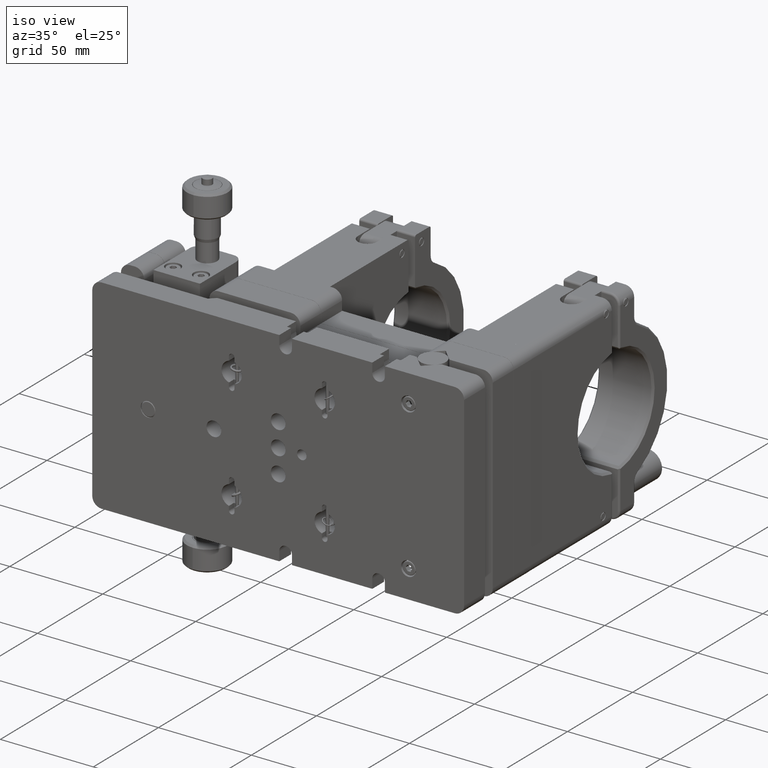
[diagram: clean part render]
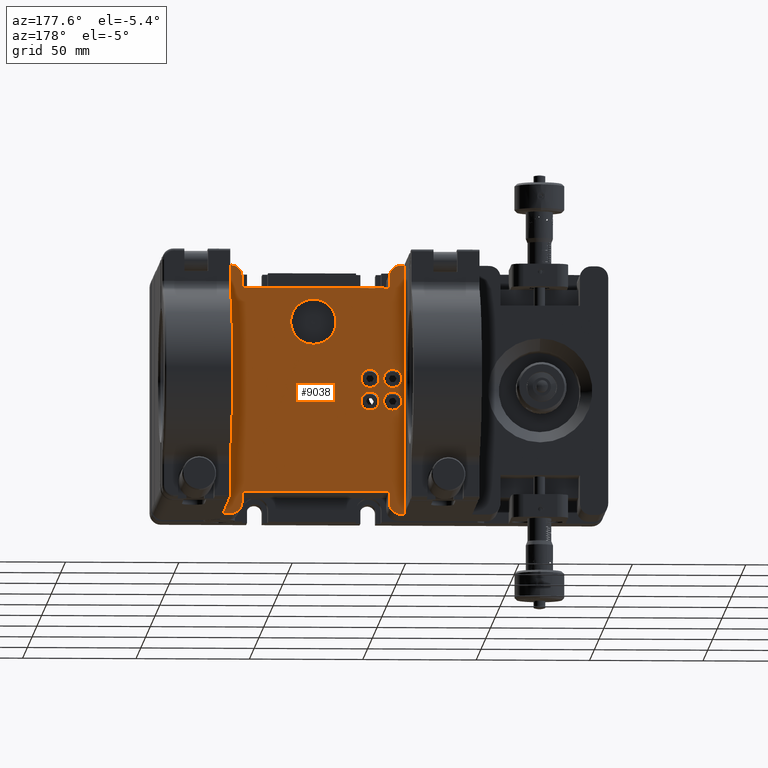
[diagram: tour spotlight — one face highlighted and labeled with its STEP entity id]
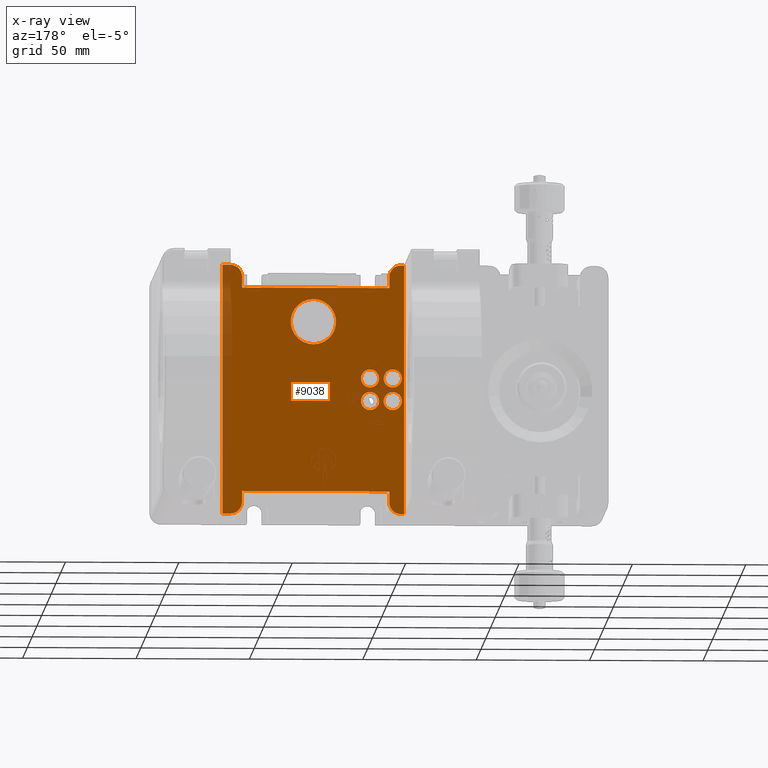
[diagram: x-ray of the same camera — body ghosted, this tour face saturated]
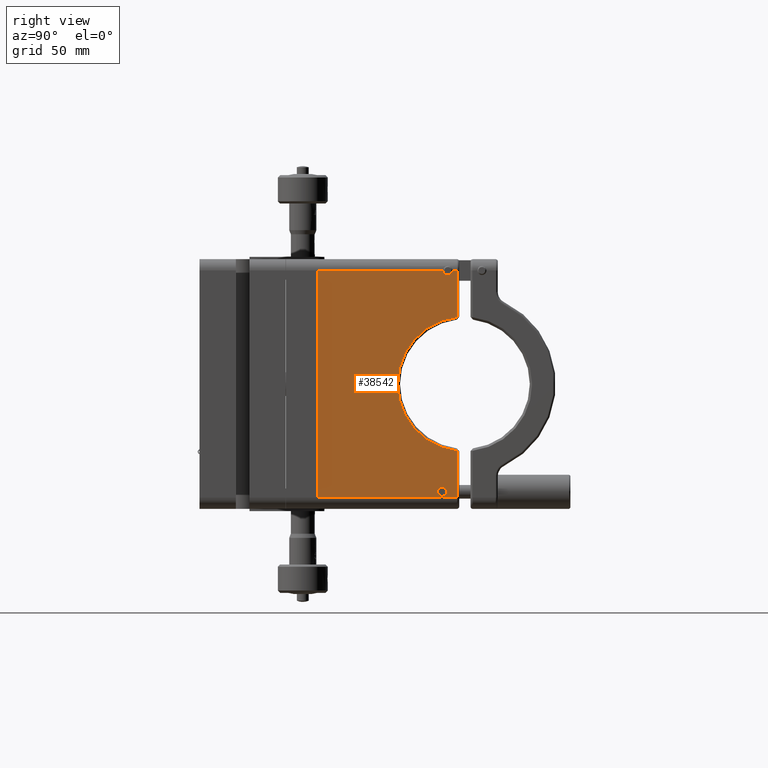
[diagram: tour spotlight — one face highlighted and labeled with its STEP entity id]
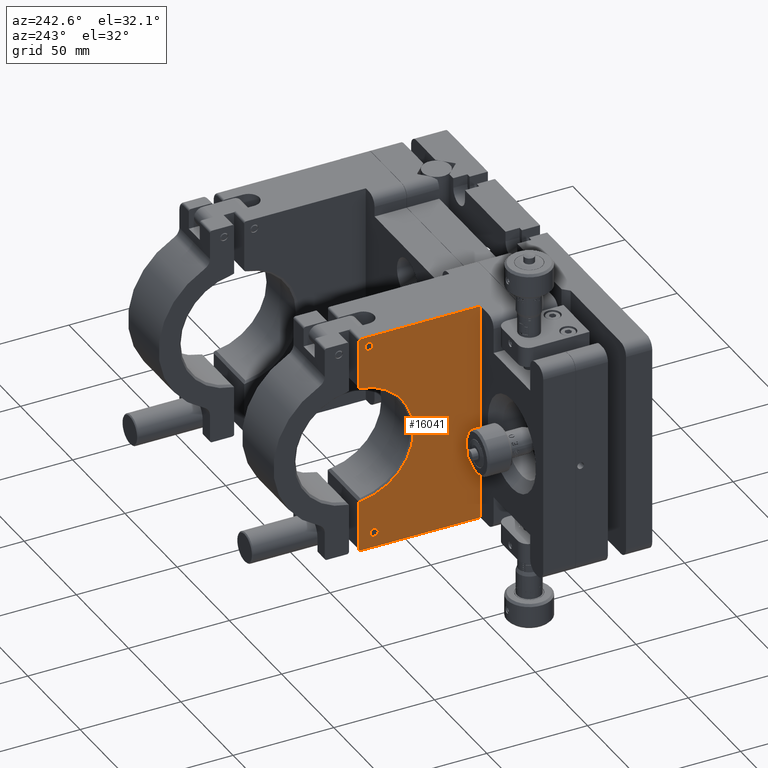
[diagram: tour spotlight — one face highlighted and labeled with its STEP entity id]
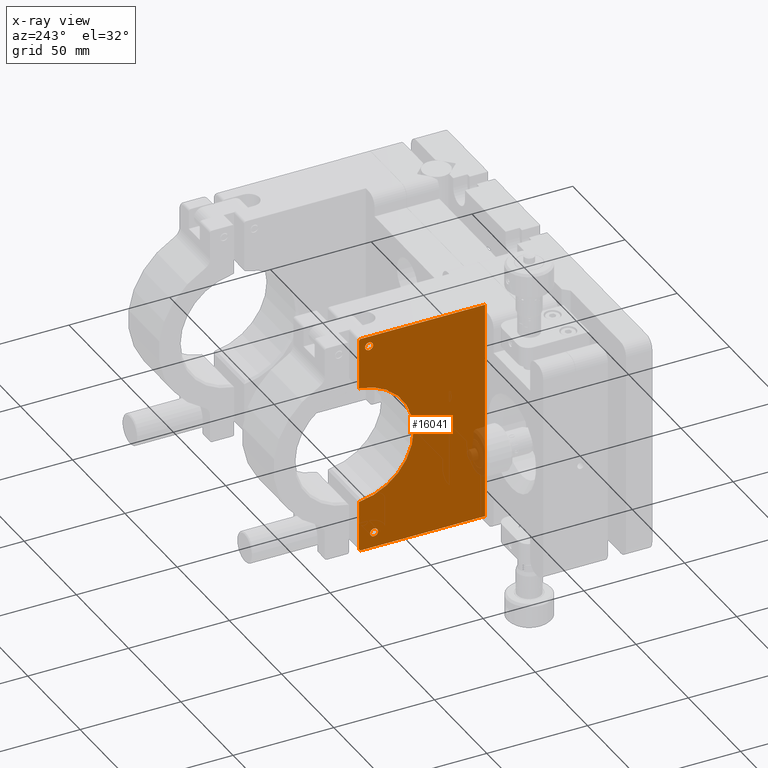
[diagram: x-ray of the same camera — body ghosted, this tour face saturated]
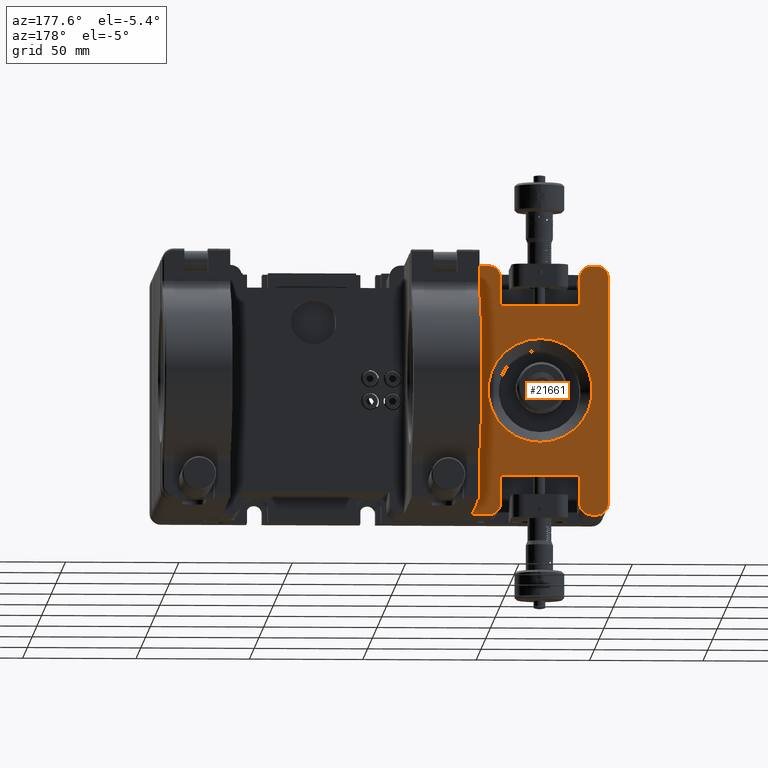
[diagram: tour spotlight — one face highlighted and labeled with its STEP entity id]
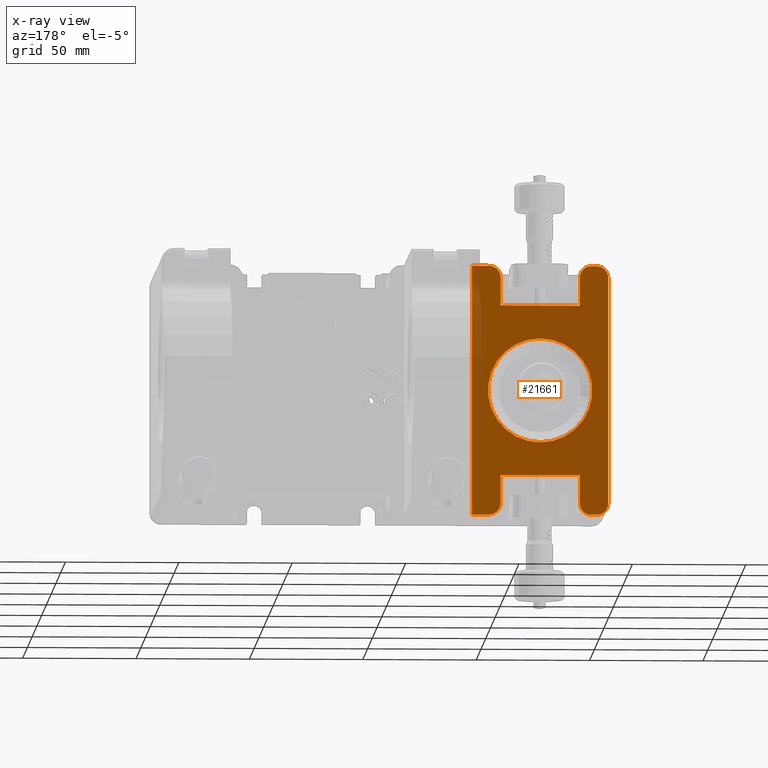
[diagram: x-ray of the same camera — body ghosted, this tour face saturated]
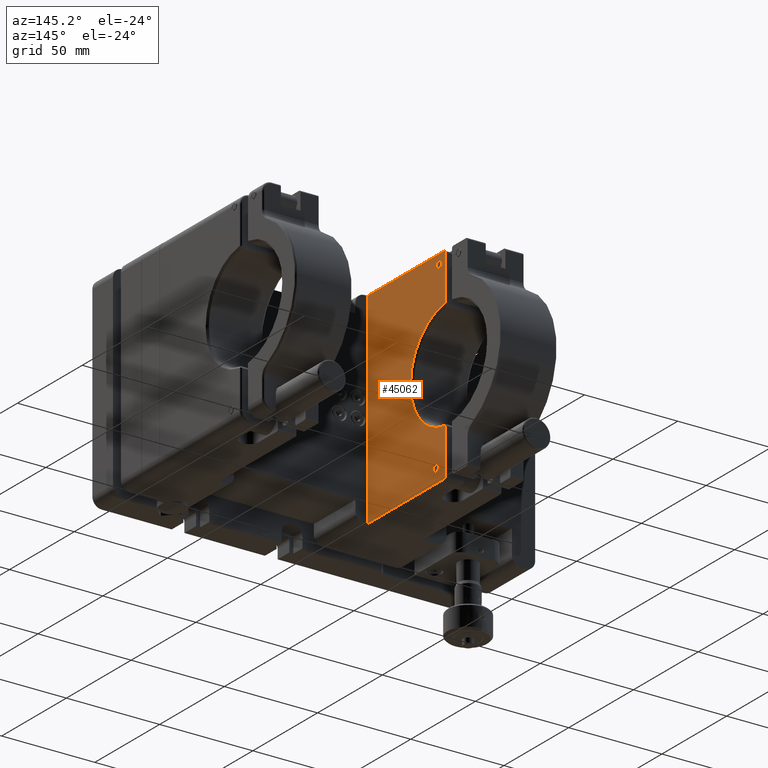
[diagram: tour spotlight — one face highlighted and labeled with its STEP entity id]
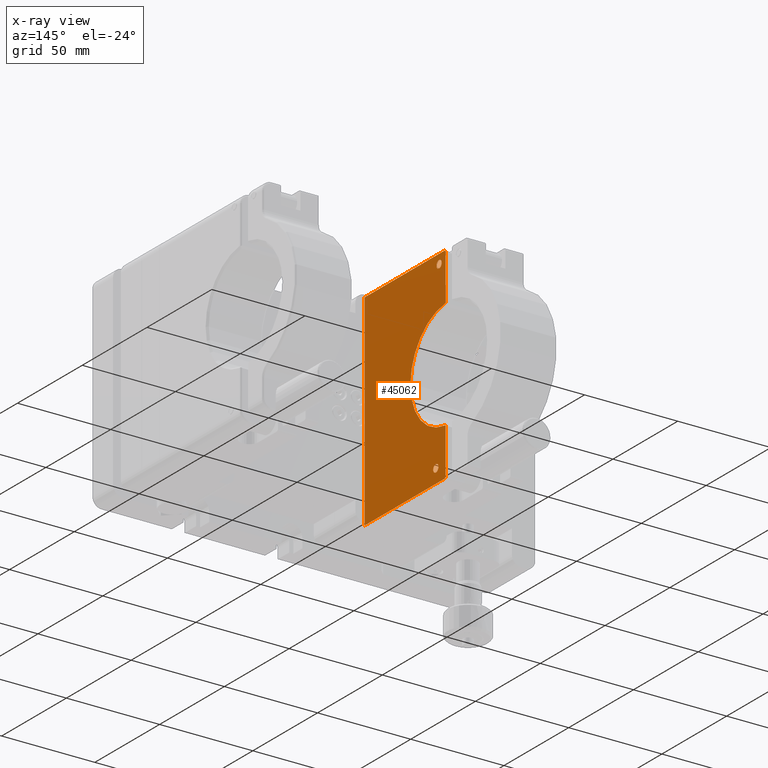
[diagram: x-ray of the same camera — body ghosted, this tour face saturated]
A machine part: a face-by-face anatomy tour. The part has 722 B-rep faces; the first image is the clean iso view, then the 5 largest visible faces are spotlighted one at a time (largest first), each with its STEP entity span.

Face 1 — auxiliary view, entity #9038. An x-ray twin of the same camera follows (body ghosted, this face saturated) — the face is partly hidden behind the body. In plain terms, the highlighted planar face has unit normal (0, -1, 0).
Definition (entity closure, byte-faithful):
#52 = ORIENTED_EDGE ( 'NONE', *, *, #20629, .F. ) ;
#123 = VERTEX_POINT ( 'NONE', #40214 ) ;
#539 = AXIS2_PLACEMENT_3D ( 'NONE', #7823, #39376, #28074 ) ;
#579 = FACE_BOUND ( 'NONE', #20034, .T. ) ;
#939 = DIRECTION ( 'NONE',  ( 0.000000000000000000, 0.000000000000000000, 1.000000000000000000 ) ) ;
#1348 = ORIENTED_EDGE ( 'NONE', *, *, #26910, .F. ) ;
#1497 = EDGE_CURVE ( 'NONE', #32727, #27497, #29357, .T. ) ;
#1608 = CARTESIAN_POINT ( 'NONE',  ( 61.50000000000002842, 46.09999999999966036, 50.00000000000000000 ) ) ;
#1836 = VERTEX_POINT ( 'NONE', #26030 ) ;
#1963 = EDGE_CURVE ( 'NONE', #123, #42309, #35944, .T. ) ;
#2191 = CARTESIAN_POINT ( 'NONE',  ( -99.99999999999998579, 46.09999999999966036, 55.00000000000000000 ) ) ;
#2243 = DIRECTION ( 'NONE',  ( -1.000000000000000000, -0.000000000000000000, -0.000000000000000000 ) ) ;
#2917 = EDGE_CURVE ( 'NONE', #1836, #37079, #35387, .T. ) ;
#2926 = DIRECTION ( 'NONE',  ( -0.000000000000000000, 1.000000000000000000, -0.000000000000000000 ) ) ;
#3278 = VECTOR ( 'NONE', #30196, 1000.000000000000000 ) ;
#3296 = DIRECTION ( 'NONE',  ( 0.000000000000000000, -1.000000000000000000, 0.000000000000000000 ) ) ;
#3368 = EDGE_LOOP ( 'NONE', ( #32736, #29129 ) ) ;
#3371 = CARTESIAN_POINT ( 'NONE',  ( 5.000000000000020428, 46.09999999999966036, -8.999999999999978684 ) ) ;
#3472 = LINE ( 'NONE', #47072, #19275 ) ;
#4134 = EDGE_CURVE ( 'NONE', #49528, #32550, #25349, .T. ) ;
#4536 = CARTESIAN_POINT ( 'NONE',  ( 5.000000000000001776, 46.09999999999966036, 5.000000000000003553 ) ) ;
#5084 = CARTESIAN_POINT ( 'NONE',  ( -5.000000000000050626, 46.09999999999966036, 8.999999999999950262 ) ) ;
#6092 = CARTESIAN_POINT ( 'NONE',  ( -3.499999999999971578, 46.09999999999966036, 45.00000000000000000 ) ) ;
#6122 = ORIENTED_EDGE ( 'NONE', *, *, #12955, .F. ) ;
#6430 = CARTESIAN_POINT ( 'NONE',  ( 61.50000000000002842, 46.09999999999966036, -55.00000000000000000 ) ) ;
#6526 = EDGE_CURVE ( 'NONE', #9096, #33537, #37464, .T. ) ;
#6682 = LINE ( 'NONE', #6430, #49584 ) ;
#6738 = DIRECTION ( 'NONE',  ( 1.000000000000000000, 0.000000000000000000, 0.000000000000000000 ) ) ;
#6988 = CIRCLE ( 'NONE', #33177, 3.999999999999999112 ) ;
#7109 = CARTESIAN_POINT ( 'NONE',  ( 5.000000000000001776, 46.09999999999966036, 9.000000000000003553 ) ) ;
#7221 = LINE ( 'NONE', #18769, #17239 ) ;
#7368 = LINE ( 'NONE', #50165, #3278 ) ;
#7823 = CARTESIAN_POINT ( 'NONE',  ( -4.999999999999998224, 46.09999999999966036, -4.999999999999996447 ) ) ;
#7971 = AXIS2_PLACEMENT_3D ( 'NONE', #23962, #16008, #39610 ) ;
#8398 = AXIS2_PLACEMENT_3D ( 'NONE', #37589, #18102, #18863 ) ;
#8432 = DIRECTION ( 'NONE',  ( -1.000000000000000000, -0.000000000000000000, -0.000000000000000000 ) ) ;
#8517 = PLANE ( 'NONE',  #48010 ) ;
#8664 = EDGE_CURVE ( 'NONE', #9879, #37079, #3472, .T. ) ;
#8905 = CIRCLE ( 'NONE', #13015, 3.999999999999999112 ) ;
#9038 = ADVANCED_FACE ( 'NONE', ( #27513, #579, #15969, #31876, #43666, #43159 ), #8517, .F. ) ;
#9096 = VERTEX_POINT ( 'NONE', #37224 ) ;
#9322 = ORIENTED_EDGE ( 'NONE', *, *, #8664, .F. ) ;
#9470 = AXIS2_PLACEMENT_3D ( 'NONE', #19061, #14941, #46497 ) ;
#9879 = VERTEX_POINT ( 'NONE', #43553 ) ;
#9994 = DIRECTION ( 'NONE',  ( 0.000000000000000000, 0.000000000000000000, 1.000000000000000000 ) ) ;
#10029 = CIRCLE ( 'NONE', #8398, 3.999999999999999112 ) ;
#10626 = VECTOR ( 'NONE', #8432, 1000.000000000000000 ) ;
#11215 = VECTOR ( 'NONE', #28879, 1000.000000000000000 ) ;
#11507 = DIRECTION ( 'NONE',  ( 0.000000000000000000, 0.000000000000000000, 1.000000000000000000 ) ) ;
#11859 = EDGE_CURVE ( 'NONE', #43889, #32114, #26677, .T. ) ;
#11923 = DIRECTION ( 'NONE',  ( -1.261617073437677999E-16, -0.000000000000000000, -1.000000000000000000 ) ) ;
#12097 = EDGE_CURVE ( 'NONE', #34727, #30294, #6682, .T. ) ;
#12713 = ORIENTED_EDGE ( 'NONE', *, *, #42113, .T. ) ;
#12955 = EDGE_CURVE ( 'NONE', #27497, #32727, #35734, .T. ) ;
#13015 = AXIS2_PLACEMENT_3D ( 'NONE', #31498, #43558, #24060 ) ;
#13168 = VERTEX_POINT ( 'NONE', #6092 ) ;
#13223 = DIRECTION ( 'NONE',  ( 0.000000000000000000, 0.000000000000000000, 1.000000000000000000 ) ) ;
#13255 = EDGE_CURVE ( 'NONE', #32550, #30294, #23469, .T. ) ;
#13339 = DIRECTION ( 'NONE',  ( -0.000000000000000000, 1.000000000000000000, -0.000000000000000000 ) ) ;
#13369 = DIRECTION ( 'NONE',  ( 0.000000000000000000, 0.000000000000000000, -1.000000000000000000 ) ) ;
#13425 = CARTESIAN_POINT ( 'NONE',  ( 30.00000000000001776, 46.09999999999966036, 40.00000000000000711 ) ) ;
#13596 = CARTESIAN_POINT ( 'NONE',  ( -5.000000000000050626, 46.09999999999966036, 4.999999999999951150 ) ) ;
#13664 = LINE ( 'NONE', #17776, #26800 ) ;
#13919 = ORIENTED_EDGE ( 'NONE', *, *, #6526, .T. ) ;
#14226 = VECTOR ( 'NONE', #2243, 1000.000000000000000 ) ;
#14433 = ORIENTED_EDGE ( 'NONE', *, *, #15970, .T. ) ;
#14876 = VERTEX_POINT ( 'NONE', #17293 ) ;
#14941 = DIRECTION ( 'NONE',  ( -0.000000000000000000, 1.000000000000000000, -0.000000000000000000 ) ) ;
#15070 = CARTESIAN_POINT ( 'NONE',  ( 30.00000000000001776, 46.09999999999966036, 30.00000000000000355 ) ) ;
#15745 = EDGE_CURVE ( 'NONE', #23645, #18426, #22655, .T. ) ;
#15855 = LINE ( 'NONE', #28405, #20466 ) ;
#15969 = FACE_BOUND ( 'NONE', #3368, .T. ) ;
#15970 = EDGE_CURVE ( 'NONE', #29956, #39953, #26752, .T. ) ;
#16008 = DIRECTION ( 'NONE',  ( -0.000000000000000000, 1.000000000000000000, -0.000000000000000000 ) ) ;
#16073 = DIRECTION ( 'NONE',  ( 0.000000000000000000, 0.000000000000000000, -1.000000000000000000 ) ) ;
#16540 = VERTEX_POINT ( 'NONE', #7109 ) ;
#16716 = EDGE_CURVE ( 'NONE', #9879, #123, #29127, .T. ) ;
#16938 = CARTESIAN_POINT ( 'NONE',  ( 30.00000000000001776, 46.09999999999966036, 20.00000000000000000 ) ) ;
#17042 = DIRECTION ( 'NONE',  ( -0.000000000000000000, 1.000000000000000000, -0.000000000000000000 ) ) ;
#17069 = EDGE_CURVE ( 'NONE', #44872, #39855, #30089, .T. ) ;
#17101 = ORIENTED_EDGE ( 'NONE', *, *, #48877, .T. ) ;
#17239 = VECTOR ( 'NONE', #19533, 1000.000000000000000 ) ;
#17293 = CARTESIAN_POINT ( 'NONE',  ( 70.00000000000001421, 46.09999999999966036, 55.00000000000000000 ) ) ;
#17724 = AXIS2_PLACEMENT_3D ( 'NONE', #34859, #31518, #11507 ) ;
#17776 = CARTESIAN_POINT ( 'NONE',  ( -3.499999999999971578, 46.09999999999966036, -45.00000000000000000 ) ) ;
#18102 = DIRECTION ( 'NONE',  ( -0.000000000000000000, 1.000000000000000000, -0.000000000000000000 ) ) ;
#18426 = VERTEX_POINT ( 'NONE', #39049 ) ;
#18607 = ORIENTED_EDGE ( 'NONE', *, *, #27241, .T. ) ;
#18768 = AXIS2_PLACEMENT_3D ( 'NONE', #42154, #2926, #19341 ) ;
#18769 = CARTESIAN_POINT ( 'NONE',  ( 70.00000000000001421, 46.09999999999966036, -54.99999999999999289 ) ) ;
#18851 = CARTESIAN_POINT ( 'NONE',  ( 66.50000000000004263, 46.09999999999966036, -55.00000000000000000 ) ) ;
#18863 = DIRECTION ( 'NONE',  ( 0.000000000000000000, 0.000000000000000000, 1.000000000000000000 ) ) ;
#19061 = CARTESIAN_POINT ( 'NONE',  ( 66.50000000000004263, 46.09999999999966036, 50.00000000000000000 ) ) ;
#19275 = VECTOR ( 'NONE', #11923, 1000.000000000000000 ) ;
#19341 = DIRECTION ( 'NONE',  ( 0.000000000000000000, 0.000000000000000000, -1.000000000000000000 ) ) ;
#19533 = DIRECTION ( 'NONE',  ( 0.000000000000000000, 0.000000000000000000, 1.000000000000000000 ) ) ;
#19556 = EDGE_LOOP ( 'NONE', ( #19709, #1348 ) ) ;
#19574 = EDGE_LOOP ( 'NONE', ( #14433, #12713 ) ) ;
#19709 = ORIENTED_EDGE ( 'NONE', *, *, #17069, .F. ) ;
#20034 = EDGE_LOOP ( 'NONE', ( #33515, #26817 ) ) ;
#20466 = VECTOR ( 'NONE', #31502, 1000.000000000000000 ) ;
#20629 = EDGE_CURVE ( 'NONE', #13168, #42309, #15855, .T. ) ;
#20848 = CARTESIAN_POINT ( 'NONE',  ( 5.000000000000019540, 46.09999999999966036, -0.9999999999999800160 ) ) ;
#20923 = CARTESIAN_POINT ( 'NONE',  ( 5.000000000000001776, 46.09999999999966036, 5.000000000000003553 ) ) ;
#21026 = VERTEX_POINT ( 'NONE', #48073 ) ;
#21107 = CARTESIAN_POINT ( 'NONE',  ( -9.999999999999978684, 46.09999999999966036, -55.00000000000000000 ) ) ;
#21127 = CIRCLE ( 'NONE', #49754, 10.00000000000000178 ) ;
#21338 = DIRECTION ( 'NONE',  ( -6.505213034913025371E-17, 0.000000000000000000, -1.000000000000000000 ) ) ;
#21960 = EDGE_CURVE ( 'NONE', #18426, #23645, #8905, .T. ) ;
#22327 = DIRECTION ( 'NONE',  ( -3.469446951953616161E-15, 0.000000000000000000, -1.000000000000000000 ) ) ;
#22655 = CIRCLE ( 'NONE', #539, 3.999999999999999112 ) ;
#22892 = LINE ( 'NONE', #30838, #41989 ) ;
#23294 = ORIENTED_EDGE ( 'NONE', *, *, #35149, .T. ) ;
#23469 = CIRCLE ( 'NONE', #25124, 4.999999999999997335 ) ;
#23551 = DIRECTION ( 'NONE',  ( -1.000000000000000000, -0.000000000000000000, -0.000000000000000000 ) ) ;
#23645 = VERTEX_POINT ( 'NONE', #24476 ) ;
#23745 = ORIENTED_EDGE ( 'NONE', *, *, #2917, .T. ) ;
#23962 = CARTESIAN_POINT ( 'NONE',  ( 5.000000000000019540, 46.09999999999966036, -4.999999999999979572 ) ) ;
#24060 = DIRECTION ( 'NONE',  ( 0.000000000000000000, 0.000000000000000000, 1.000000000000000000 ) ) ;
#24117 = VECTOR ( 'NONE', #21338, 1000.000000000000000 ) ;
#24173 = CARTESIAN_POINT ( 'NONE',  ( 100.0000000000000142, 46.09999999999966036, -55.00000000000000000 ) ) ;
#24476 = CARTESIAN_POINT ( 'NONE',  ( -4.999999999999997335, 46.09999999999966036, -8.999999999999996447 ) ) ;
#24477 = ORIENTED_EDGE ( 'NONE', *, *, #48181, .F. ) ;
#25124 = AXIS2_PLACEMENT_3D ( 'NONE', #40348, #35571, #16073 ) ;
#25349 = LINE ( 'NONE', #33785, #14226 ) ;
#25725 = DIRECTION ( 'NONE',  ( -1.000000000000000000, -0.000000000000000000, 0.000000000000000000 ) ) ;
#26030 = CARTESIAN_POINT ( 'NONE',  ( -8.499999999999964473, 46.09999999999966036, -55.00000000000000000 ) ) ;
#26677 = CIRCLE ( 'NONE', #9470, 4.999999999999997335 ) ;
#26752 = CIRCLE ( 'NONE', #46409, 10.00000000000000178 ) ;
#26800 = VECTOR ( 'NONE', #25725, 1000.000000000000000 ) ;
#26817 = ORIENTED_EDGE ( 'NONE', *, *, #15745, .F. ) ;
#26910 = EDGE_CURVE ( 'NONE', #39855, #44872, #10029, .T. ) ;
#27241 = EDGE_CURVE ( 'NONE', #32114, #14876, #22892, .T. ) ;
#27497 = VERTEX_POINT ( 'NONE', #5084 ) ;
#27513 = FACE_BOUND ( 'NONE', #19556, .T. ) ;
#28045 = ORIENTED_EDGE ( 'NONE', *, *, #43209, .F. ) ;
#28074 = DIRECTION ( 'NONE',  ( 0.000000000000000000, 0.000000000000000000, 1.000000000000000000 ) ) ;
#28200 = AXIS2_PLACEMENT_3D ( 'NONE', #4536, #40677, #939 ) ;
#28405 = CARTESIAN_POINT ( 'NONE',  ( -3.499999999999972911, 46.09999999999966036, 65.00000000000000000 ) ) ;
#28879 = DIRECTION ( 'NONE',  ( 1.000000000000000000, 0.000000000000000000, 0.000000000000000000 ) ) ;
#28894 = EDGE_CURVE ( 'NONE', #31800, #16540, #33139, .T. ) ;
#29127 = LINE ( 'NONE', #2191, #11215 ) ;
#29129 = ORIENTED_EDGE ( 'NONE', *, *, #28894, .F. ) ;
#29357 = CIRCLE ( 'NONE', #35911, 3.999999999999999112 ) ;
#29956 = VERTEX_POINT ( 'NONE', #13425 ) ;
#30089 = CIRCLE ( 'NONE', #7971, 3.999999999999999112 ) ;
#30196 = DIRECTION ( 'NONE',  ( 0.000000000000000000, 0.000000000000000000, -1.000000000000000000 ) ) ;
#30294 = VERTEX_POINT ( 'NONE', #35602 ) ;
#30387 = ORIENTED_EDGE ( 'NONE', *, *, #46293, .F. ) ;
#30727 = DIRECTION ( 'NONE',  ( 0.000000000000000000, 0.000000000000000000, -1.000000000000000000 ) ) ;
#30755 = EDGE_LOOP ( 'NONE', ( #6122, #37096 ) ) ;
#30838 = CARTESIAN_POINT ( 'NONE',  ( -99.99999999999998579, 46.09999999999966036, 55.00000000000000000 ) ) ;
#31069 = EDGE_LOOP ( 'NONE', ( #48064, #48413, #41495, #23294, #13919, #17101, #23745, #9322, #39803, #49868, #52, #28045, #24477, #48593, #18607, #30387 ) ) ;
#31498 = CARTESIAN_POINT ( 'NONE',  ( -4.999999999999998224, 46.09999999999966036, -4.999999999999996447 ) ) ;
#31502 = DIRECTION ( 'NONE',  ( -6.505213034913025371E-17, -0.000000000000000000, 1.000000000000000000 ) ) ;
#31515 = CARTESIAN_POINT ( 'NONE',  ( 61.50000000000002842, 46.09999999999966036, -45.00000000000000000 ) ) ;
#31518 = DIRECTION ( 'NONE',  ( -0.000000000000000000, 1.000000000000000000, -0.000000000000000000 ) ) ;
#31800 = VERTEX_POINT ( 'NONE', #50538 ) ;
#31876 = FACE_BOUND ( 'NONE', #30755, .T. ) ;
#32018 = LINE ( 'NONE', #47657, #38356 ) ;
#32036 = AXIS2_PLACEMENT_3D ( 'NONE', #34126, #17042, #22327 ) ;
#32114 = VERTEX_POINT ( 'NONE', #47490 ) ;
#32362 = EDGE_CURVE ( 'NONE', #16540, #31800, #6988, .T. ) ;
#32550 = VERTEX_POINT ( 'NONE', #18851 ) ;
#32727 = VERTEX_POINT ( 'NONE', #38747 ) ;
#32736 = ORIENTED_EDGE ( 'NONE', *, *, #32362, .F. ) ;
#33139 = CIRCLE ( 'NONE', #28200, 3.999999999999999112 ) ;
#33177 = AXIS2_PLACEMENT_3D ( 'NONE', #20923, #44016, #13223 ) ;
#33515 = ORIENTED_EDGE ( 'NONE', *, *, #21960, .F. ) ;
#33537 = VERTEX_POINT ( 'NONE', #33774 ) ;
#33774 = CARTESIAN_POINT ( 'NONE',  ( -3.499999999999972022, 46.09999999999966036, -50.00000000000000000 ) ) ;
#33785 = CARTESIAN_POINT ( 'NONE',  ( -99.99999999999998579, 46.09999999999966036, -55.00000000000000000 ) ) ;
#34126 = CARTESIAN_POINT ( 'NONE',  ( -8.499999999999971578, 46.09999999999966036, -50.00000000000000000 ) ) ;
#34727 = VERTEX_POINT ( 'NONE', #31515 ) ;
#34767 = CARTESIAN_POINT ( 'NONE',  ( -3.499999999999972022, 46.09999999999966036, 50.00000000000000000 ) ) ;
#34859 = CARTESIAN_POINT ( 'NONE',  ( -5.000000000000050626, 46.09999999999966036, 4.999999999999951150 ) ) ;
#35149 = EDGE_CURVE ( 'NONE', #34727, #9096, #13664, .T. ) ;
#35387 = LINE ( 'NONE', #35629, #10626 ) ;
#35571 = DIRECTION ( 'NONE',  ( -0.000000000000000000, 1.000000000000000000, -0.000000000000000000 ) ) ;
#35602 = CARTESIAN_POINT ( 'NONE',  ( 61.50000000000002842, 46.09999999999966036, -50.00000000000000000 ) ) ;
#35629 = CARTESIAN_POINT ( 'NONE',  ( -99.99999999999998579, 46.09999999999966036, -55.00000000000000000 ) ) ;
#35734 = CIRCLE ( 'NONE', #17724, 3.999999999999999112 ) ;
#35911 = AXIS2_PLACEMENT_3D ( 'NONE', #13596, #13339, #9994 ) ;
#35944 = CIRCLE ( 'NONE', #18768, 4.999999999999997335 ) ;
#37079 = VERTEX_POINT ( 'NONE', #21107 ) ;
#37096 = ORIENTED_EDGE ( 'NONE', *, *, #1497, .F. ) ;
#37224 = CARTESIAN_POINT ( 'NONE',  ( -3.499999999999971578, 46.09999999999966036, -45.00000000000000000 ) ) ;
#37464 = LINE ( 'NONE', #48251, #24117 ) ;
#37589 = CARTESIAN_POINT ( 'NONE',  ( 5.000000000000019540, 46.09999999999966036, -4.999999999999979572 ) ) ;
#37789 = DIRECTION ( 'NONE',  ( 0.000000000000000000, -1.000000000000000000, 0.000000000000000000 ) ) ;
#38356 = VECTOR ( 'NONE', #23551, 1000.000000000000000 ) ;
#38747 = CARTESIAN_POINT ( 'NONE',  ( -5.000000000000049738, 46.09999999999966036, 0.9999999999999522604 ) ) ;
#39049 = CARTESIAN_POINT ( 'NONE',  ( -4.999999999999998224, 46.09999999999966036, -0.9999999999999974465 ) ) ;
#39376 = DIRECTION ( 'NONE',  ( -0.000000000000000000, 1.000000000000000000, -0.000000000000000000 ) ) ;
#39610 = DIRECTION ( 'NONE',  ( 0.000000000000000000, 0.000000000000000000, 1.000000000000000000 ) ) ;
#39803 = ORIENTED_EDGE ( 'NONE', *, *, #16716, .T. ) ;
#39820 = DIRECTION ( 'NONE',  ( 0.000000000000000000, -1.000000000000000000, 0.000000000000000000 ) ) ;
#39855 = VERTEX_POINT ( 'NONE', #3371 ) ;
#39953 = VERTEX_POINT ( 'NONE', #16938 ) ;
#40214 = CARTESIAN_POINT ( 'NONE',  ( -8.499999999999978684, 46.09999999999966036, 55.00000000000000000 ) ) ;
#40348 = CARTESIAN_POINT ( 'NONE',  ( 66.50000000000002842, 46.09999999999966036, -50.00000000000000000 ) ) ;
#40677 = DIRECTION ( 'NONE',  ( -0.000000000000000000, 1.000000000000000000, -0.000000000000000000 ) ) ;
#41198 = CARTESIAN_POINT ( 'NONE',  ( 70.00000000000001421, 46.09999999999966036, -54.99999999999999289 ) ) ;
#41495 = ORIENTED_EDGE ( 'NONE', *, *, #12097, .F. ) ;
#41881 = CARTESIAN_POINT ( 'NONE',  ( 30.00000000000001776, 46.09999999999966036, 30.00000000000000355 ) ) ;
#41989 = VECTOR ( 'NONE', #6738, 1000.000000000000000 ) ;
#42113 = EDGE_CURVE ( 'NONE', #39953, #29956, #21127, .T. ) ;
#42154 = CARTESIAN_POINT ( 'NONE',  ( -8.499999999999978684, 46.09999999999966036, 50.00000000000000000 ) ) ;
#42309 = VERTEX_POINT ( 'NONE', #34767 ) ;
#43159 = FACE_BOUND ( 'NONE', #19574, .T. ) ;
#43209 = EDGE_CURVE ( 'NONE', #21026, #13168, #32018, .T. ) ;
#43553 = CARTESIAN_POINT ( 'NONE',  ( -9.999999999999966249, 46.09999999999966036, 55.00000000000000000 ) ) ;
#43558 = DIRECTION ( 'NONE',  ( -0.000000000000000000, 1.000000000000000000, -0.000000000000000000 ) ) ;
#43666 = FACE_OUTER_BOUND ( 'NONE', #31069, .T. ) ;
#43889 = VERTEX_POINT ( 'NONE', #1608 ) ;
#44016 = DIRECTION ( 'NONE',  ( -0.000000000000000000, 1.000000000000000000, -0.000000000000000000 ) ) ;
#44872 = VERTEX_POINT ( 'NONE', #20848 ) ;
#46293 = EDGE_CURVE ( 'NONE', #49528, #14876, #7221, .T. ) ;
#46409 = AXIS2_PLACEMENT_3D ( 'NONE', #41881, #37789, #49560 ) ;
#46497 = DIRECTION ( 'NONE',  ( 0.000000000000000000, 0.000000000000000000, -1.000000000000000000 ) ) ;
#47072 = CARTESIAN_POINT ( 'NONE',  ( -9.999999999999978684, 46.09999999999966036, -55.00000000000000000 ) ) ;
#47490 = CARTESIAN_POINT ( 'NONE',  ( 66.50000000000004263, 46.09999999999966036, 55.00000000000000000 ) ) ;
#47657 = CARTESIAN_POINT ( 'NONE',  ( -3.499999999999971578, 46.09999999999966036, 45.00000000000000000 ) ) ;
#48010 = AXIS2_PLACEMENT_3D ( 'NONE', #24173, #39820, #48766 ) ;
#48064 = ORIENTED_EDGE ( 'NONE', *, *, #4134, .T. ) ;
#48073 = CARTESIAN_POINT ( 'NONE',  ( 61.50000000000002842, 46.09999999999966036, 45.00000000000000000 ) ) ;
#48181 = EDGE_CURVE ( 'NONE', #43889, #21026, #7368, .T. ) ;
#48251 = CARTESIAN_POINT ( 'NONE',  ( -3.499999999999972911, 46.09999999999966036, -65.00000000000000000 ) ) ;
#48413 = ORIENTED_EDGE ( 'NONE', *, *, #13255, .T. ) ;
#48593 = ORIENTED_EDGE ( 'NONE', *, *, #11859, .T. ) ;
#48766 = DIRECTION ( 'NONE',  ( 0.000000000000000000, -0.000000000000000000, -1.000000000000000000 ) ) ;
#48877 = EDGE_CURVE ( 'NONE', #33537, #1836, #49220, .T. ) ;
#49220 = CIRCLE ( 'NONE', #32036, 4.999999999999997335 ) ;
#49528 = VERTEX_POINT ( 'NONE', #41198 ) ;
#49560 = DIRECTION ( 'NONE',  ( 0.000000000000000000, 0.000000000000000000, -1.000000000000000000 ) ) ;
#49584 = VECTOR ( 'NONE', #13369, 1000.000000000000000 ) ;
#49754 = AXIS2_PLACEMENT_3D ( 'NONE', #15070, #3296, #30727 ) ;
#49868 = ORIENTED_EDGE ( 'NONE', *, *, #1963, .T. ) ;
#50165 = CARTESIAN_POINT ( 'NONE',  ( 61.50000000000002842, 46.09999999999966036, 65.00000000000000000 ) ) ;
#50538 = CARTESIAN_POINT ( 'NONE',  ( 5.000000000000002665, 46.09999999999966036, 1.000000000000004441 ) ) ;

Face 2 — right view, entity #38542. In plain terms, the highlighted planar face has unit normal (1, 0, -0).
Definition (entity closure, byte-faithful):
#235 = CIRCLE ( 'NONE', #32162, 2.000000000000008882 ) ;
#1728 = EDGE_CURVE ( 'NONE', #26033, #47559, #24011, .T. ) ;
#2137 = DIRECTION ( 'NONE',  ( 0.000000000000000000, 0.000000000000000000, -1.000000000000000000 ) ) ;
#3060 = CARTESIAN_POINT ( 'NONE',  ( 99.89407885232773765, 105.4000000000008583, 29.39234594243885468 ) ) ;
#3576 = ORIENTED_EDGE ( 'NONE', *, *, #42821, .T. ) ;
#5020 = CARTESIAN_POINT ( 'NONE',  ( 99.89407885232803608, 43.90000000000083702, 50.00000000000004974 ) ) ;
#5151 = EDGE_CURVE ( 'NONE', #25596, #26033, #18789, .T. ) ;
#5330 = ORIENTED_EDGE ( 'NONE', *, *, #35619, .T. ) ;
#5982 = DIRECTION ( 'NONE',  ( -9.376883653928672819E-16, 1.406532548089300726E-15, -1.000000000000000000 ) ) ;
#6015 = ORIENTED_EDGE ( 'NONE', *, *, #27157, .F. ) ;
#6624 = DIRECTION ( 'NONE',  ( -4.546011006333814403E-15, 1.000000000000000000, 3.419019137486828929E-16 ) ) ;
#7073 = ORIENTED_EDGE ( 'NONE', *, *, #37648, .F. ) ;
#7617 = CARTESIAN_POINT ( 'NONE',  ( 99.89407885232779449, 99.40000000000084412, 50.00000000000009237 ) ) ;
#8875 = CARTESIAN_POINT ( 'NONE',  ( 99.89407885232803608, 43.90000000000083702, 50.00000000000005684 ) ) ;
#9467 = AXIS2_PLACEMENT_3D ( 'NONE', #16318, #41409, #13980 ) ;
#10301 = CIRCLE ( 'NONE', #9467, 2.000000000000008882 ) ;
#10750 = CARTESIAN_POINT ( 'NONE',  ( 99.89407885232770923, 98.90000000000088676, -49.50000000000011369 ) ) ;
#10844 = VERTEX_POINT ( 'NONE', #45474 ) ;
#11588 = EDGE_LOOP ( 'NONE', ( #3576, #5330, #20181, #13826, #27482, #34272, #37008, #43546, #21987 ) ) ;
#11888 = CARTESIAN_POINT ( 'NONE',  ( 99.89407885232756712, 148.9000000000008868, 55.00000000000011369 ) ) ;
#12917 = CARTESIAN_POINT ( 'NONE',  ( 99.89407885232769502, 108.9000000000008725, -1.465205920106495378E-14 ) ) ;
#13683 = CARTESIAN_POINT ( 'NONE',  ( 99.89407885232770923, 98.90000000000088676, -47.50000000000010658 ) ) ;
#13826 = ORIENTED_EDGE ( 'NONE', *, *, #49413, .F. ) ;
#13980 = DIRECTION ( 'NONE',  ( 0.000000000000000000, 0.000000000000000000, -1.000000000000000000 ) ) ;
#14589 = AXIS2_PLACEMENT_3D ( 'NONE', #34641, #42327, #22594 ) ;
#15591 = LINE ( 'NONE', #46623, #16466 ) ;
#16196 = CARTESIAN_POINT ( 'NONE',  ( 99.89407885232803608, 43.90000000000083702, 50.00000000000004974 ) ) ;
#16266 = FACE_BOUND ( 'NONE', #23694, .T. ) ;
#16318 = CARTESIAN_POINT ( 'NONE',  ( 99.89407885232770923, 98.90000000000088676, -47.50000000000010658 ) ) ;
#16466 = VECTOR ( 'NONE', #38162, 1000.000000000000000 ) ;
#16528 = VERTEX_POINT ( 'NONE', #7617 ) ;
#16653 = VERTEX_POINT ( 'NONE', #8875 ) ;
#17123 = VECTOR ( 'NONE', #39909, 1000.000000000000000 ) ;
#17287 = CARTESIAN_POINT ( 'NONE',  ( 99.89407885232776607, 105.4000000000008583, 50.00000000000007105 ) ) ;
#17719 = VERTEX_POINT ( 'NONE', #42301 ) ;
#17901 = LINE ( 'NONE', #16196, #32365 ) ;
#17931 = CARTESIAN_POINT ( 'NONE',  ( 99.89407885232769502, 106.4000000000008868, -50.00000000000012790 ) ) ;
#18789 = LINE ( 'NONE', #25974, #48570 ) ;
#19939 = EDGE_CURVE ( 'NONE', #17719, #10844, #37668, .T. ) ;
#20181 = ORIENTED_EDGE ( 'NONE', *, *, #32093, .T. ) ;
#20556 = DIRECTION ( 'NONE',  ( 1.068589661201707451E-15, -3.478815335252677420E-16, 1.000000000000000000 ) ) ;
#21622 = CARTESIAN_POINT ( 'NONE',  ( 99.89407885232778028, 101.4000000000008299, 48.00000000000009237 ) ) ;
#21987 = ORIENTED_EDGE ( 'NONE', *, *, #1728, .T. ) ;
#22594 = DIRECTION ( 'NONE',  ( 0.000000000000000000, 0.000000000000000000, 1.000000000000000000 ) ) ;
#22737 = CARTESIAN_POINT ( 'NONE',  ( 99.89407885232770923, 98.90000000000081570, -45.50000000000009948 ) ) ;
#22810 = CARTESIAN_POINT ( 'NONE',  ( 99.89407885232778028, 101.4000000000008441, 50.00000000000009237 ) ) ;
#23694 = EDGE_LOOP ( 'NONE', ( #6015, #7073 ) ) ;
#24011 = LINE ( 'NONE', #5020, #17123 ) ;
#25518 = VERTEX_POINT ( 'NONE', #10750 ) ;
#25596 = VERTEX_POINT ( 'NONE', #3060 ) ;
#25974 = CARTESIAN_POINT ( 'NONE',  ( 99.89407885232776607, 105.4000000000008583, 50.00000000000007105 ) ) ;
#26033 = VERTEX_POINT ( 'NONE', #17287 ) ;
#26090 = EDGE_CURVE ( 'NONE', #43600, #25596, #29642, .T. ) ;
#26653 = DIRECTION ( 'NONE',  ( 0.000000000000000000, 0.000000000000000000, 1.000000000000000000 ) ) ;
#26831 = CIRCLE ( 'NONE', #44859, 2.000000000000008882 ) ;
#27157 = EDGE_CURVE ( 'NONE', #25518, #37521, #235, .T. ) ;
#27482 = ORIENTED_EDGE ( 'NONE', *, *, #19939, .T. ) ;
#27547 = PLANE ( 'NONE',  #38168 ) ;
#29072 = VECTOR ( 'NONE', #20556, 1000.000000000000000 ) ;
#29642 = CIRCLE ( 'NONE', #33738, 29.60000000000004761 ) ;
#29685 = LINE ( 'NONE', #36437, #29072 ) ;
#31726 = VERTEX_POINT ( 'NONE', #21622 ) ;
#31842 = DIRECTION ( 'NONE',  ( 4.546011006333814403E-15, -1.000000000000000000, -3.419019137486828929E-16 ) ) ;
#31928 = EDGE_CURVE ( 'NONE', #10844, #43600, #29685, .T. ) ;
#32093 = EDGE_CURVE ( 'NONE', #16528, #16653, #17901, .T. ) ;
#32162 = AXIS2_PLACEMENT_3D ( 'NONE', #13683, #37272, #2137 ) ;
#32365 = VECTOR ( 'NONE', #31842, 1000.000000000000000 ) ;
#33738 = AXIS2_PLACEMENT_3D ( 'NONE', #12917, #48807, #5982 ) ;
#34272 = ORIENTED_EDGE ( 'NONE', *, *, #31928, .T. ) ;
#34641 = CARTESIAN_POINT ( 'NONE',  ( 99.89407885232778028, 101.4000000000008441, 50.00000000000009237 ) ) ;
#35619 = EDGE_CURVE ( 'NONE', #31726, #16528, #26831, .T. ) ;
#36437 = CARTESIAN_POINT ( 'NONE',  ( 99.89407885232768081, 105.4000000000008868, -29.49423672516384087 ) ) ;
#36715 = CIRCLE ( 'NONE', #14589, 2.000000000000008882 ) ;
#37008 = ORIENTED_EDGE ( 'NONE', *, *, #26090, .T. ) ;
#37272 = DIRECTION ( 'NONE',  ( 1.000000000000000000, 4.473367521758299178E-15, -1.117161918529069094E-15 ) ) ;
#37451 = CARTESIAN_POINT ( 'NONE',  ( 99.89407885232782291, 103.4000000000008583, 50.00000000000009237 ) ) ;
#37521 = VERTEX_POINT ( 'NONE', #22737 ) ;
#37648 = EDGE_CURVE ( 'NONE', #37521, #25518, #10301, .T. ) ;
#37668 = LINE ( 'NONE', #17931, #50714 ) ;
#38162 = DIRECTION ( 'NONE',  ( 1.068589661201707451E-15, -3.478815335252677420E-16, 1.000000000000000000 ) ) ;
#38168 = AXIS2_PLACEMENT_3D ( 'NONE', #11888, #47042, #43195 ) ;
#38457 = DIRECTION ( 'NONE',  ( -1.000000000000000000, -4.473367521758299178E-15, 1.117161918529069094E-15 ) ) ;
#38542 = ADVANCED_FACE ( 'NONE', ( #16266, #43457 ), #27547, .T. ) ;
#39909 = DIRECTION ( 'NONE',  ( 4.546011006333814403E-15, -1.000000000000000000, -3.419019137486828929E-16 ) ) ;
#41409 = DIRECTION ( 'NONE',  ( 1.000000000000000000, 4.473367521758299178E-15, -1.117161918529069094E-15 ) ) ;
#42301 = CARTESIAN_POINT ( 'NONE',  ( 99.89407885232792239, 43.90000000000086544, -50.00000000000014921 ) ) ;
#42327 = DIRECTION ( 'NONE',  ( -1.000000000000000000, -4.473367521758299178E-15, 1.117161918529069094E-15 ) ) ;
#42821 = EDGE_CURVE ( 'NONE', #47559, #31726, #36715, .T. ) ;
#43195 = DIRECTION ( 'NONE',  ( -1.068589661201707254E-15, 3.478815335252676927E-16, -1.000000000000000000 ) ) ;
#43457 = FACE_OUTER_BOUND ( 'NONE', #11588, .T. ) ;
#43546 = ORIENTED_EDGE ( 'NONE', *, *, #5151, .T. ) ;
#43600 = VERTEX_POINT ( 'NONE', #48844 ) ;
#44859 = AXIS2_PLACEMENT_3D ( 'NONE', #22810, #38457, #26653 ) ;
#45474 = CARTESIAN_POINT ( 'NONE',  ( 99.89407885232765238, 105.4000000000008868, -50.00000000000012790 ) ) ;
#46623 = CARTESIAN_POINT ( 'NONE',  ( 99.89407885232792239, 43.90000000000086544, -55.00000000000014921 ) ) ;
#47042 = DIRECTION ( 'NONE',  ( 1.000000000000000000, 4.473367521758299178E-15, -1.068589661201705676E-15 ) ) ;
#47559 = VERTEX_POINT ( 'NONE', #37451 ) ;
#48570 = VECTOR ( 'NONE', #50290, 1000.000000000000000 ) ;
#48807 = DIRECTION ( 'NONE',  ( -1.000000000000000000, -4.473367521758299178E-15, 1.117161918529069094E-15 ) ) ;
#48844 = CARTESIAN_POINT ( 'NONE',  ( 99.89407885232768081, 105.4000000000008868, -29.39234594243889021 ) ) ;
#49413 = EDGE_CURVE ( 'NONE', #17719, #16653, #15591, .T. ) ;
#50290 = DIRECTION ( 'NONE',  ( 1.068589661201707451E-15, -3.478815335252677420E-16, 1.000000000000000000 ) ) ;
#50714 = VECTOR ( 'NONE', #6624, 1000.000000000000000 ) ;

Face 3 — auxiliary view, entity #16041. An x-ray twin of the same camera follows (body ghosted, this face saturated) — the face is partly hidden behind the body. In plain terms, the highlighted planar face has unit normal (1, 0, 0).
Definition (entity closure, byte-faithful):
#1015 = ORIENTED_EDGE ( 'NONE', *, *, #12842, .T. ) ;
#1079 = ORIENTED_EDGE ( 'NONE', *, *, #3878, .T. ) ;
#1382 = AXIS2_PLACEMENT_3D ( 'NONE', #48483, #12841, #28745 ) ;
#1912 = EDGE_CURVE ( 'NONE', #28646, #29767, #36784, .T. ) ;
#2143 = VECTOR ( 'NONE', #13135, 1000.000000000000000 ) ;
#2484 = CARTESIAN_POINT ( 'NONE',  ( -40.00000000000102318, 106.3999999999991672, 87.26906796063448724 ) ) ;
#2883 = DIRECTION ( 'NONE',  ( 0.000000000000000000, 0.000000000000000000, -1.000000000000000000 ) ) ;
#2966 = VECTOR ( 'NONE', #23808, 999.9999999999998863 ) ;
#3076 = VERTEX_POINT ( 'NONE', #45331 ) ;
#3567 = VECTOR ( 'NONE', #11311, 1000.000000000000000 ) ;
#3773 = CIRCLE ( 'NONE', #17690, 2.000000000000001776 ) ;
#3878 = EDGE_CURVE ( 'NONE', #50695, #18464, #22364, .T. ) ;
#4921 = VERTEX_POINT ( 'NONE', #39853 ) ;
#5401 = PLANE ( 'NONE',  #1382 ) ;
#5475 = CARTESIAN_POINT ( 'NONE',  ( -40.00000000000093081, 101.3999999999991672, 49.99999999999997868 ) ) ;
#6328 = DIRECTION ( 'NONE',  ( 3.469446951953611033E-15, 0.000000000000000000, -1.000000000000000000 ) ) ;
#6912 = DIRECTION ( 'NONE',  ( -1.000000000000000000, -4.511439337623138347E-15, -1.783295733304157693E-15 ) ) ;
#8161 = CARTESIAN_POINT ( 'NONE',  ( -40.00000000000091660, 106.3999999999991957, 29.59092576319346435 ) ) ;
#9078 = EDGE_CURVE ( 'NONE', #36229, #32829, #41329, .T. ) ;
#9228 = AXIS2_PLACEMENT_3D ( 'NONE', #18800, #45729, #2883 ) ;
#9274 = CARTESIAN_POINT ( 'NONE',  ( -40.00000000000092371, 101.3999999999991815, 47.99999999999997868 ) ) ;
#9409 = CARTESIAN_POINT ( 'NONE',  ( -40.00000000000090949, 106.3125874125866233, 29.48669693442280604 ) ) ;
#9491 = FACE_OUTER_BOUND ( 'NONE', #40834, .T. ) ;
#9843 = EDGE_CURVE ( 'NONE', #4921, #20813, #28153, .T. ) ;
#10419 = CARTESIAN_POINT ( 'NONE',  ( -40.00000000000074607, 98.89999999999920988, -47.50000000000004974 ) ) ;
#10421 = DIRECTION ( 'NONE',  ( 1.000000000000000000, 4.511439337623138347E-15, 1.783295733304157693E-15 ) ) ;
#11311 = DIRECTION ( 'NONE',  ( 4.514927566733860879E-15, -1.000000000000000000, -3.457653458388622086E-16 ) ) ;
#11634 = CARTESIAN_POINT ( 'NONE',  ( -40.00000000000067502, 43.89999999999916724, 54.99999999999995737 ) ) ;
#12841 = DIRECTION ( 'NONE',  ( 1.000000000000000000, 4.511439337623138347E-15, 1.790234627208066105E-15 ) ) ;
#12842 = EDGE_CURVE ( 'NONE', #18464, #18907, #45898, .T. ) ;
#13135 = DIRECTION ( 'NONE',  ( -1.529551730327886544E-15, 0.6425900800958140868, -0.7662101467368173102 ) ) ;
#13172 = CARTESIAN_POINT ( 'NONE',  ( -40.00000000000095923, 106.3999999999991815, 53.99999999999997868 ) ) ;
#13257 = CARTESIAN_POINT ( 'NONE',  ( -40.00000000000093792, 101.3999999999991672, 51.99999999999998579 ) ) ;
#13792 = EDGE_CURVE ( 'NONE', #47588, #50695, #28400, .T. ) ;
#14610 = CARTESIAN_POINT ( 'NONE',  ( -40.00000000000076028, 105.3999999999992099, -54.00000000000004974 ) ) ;
#15681 = ORIENTED_EDGE ( 'NONE', *, *, #9078, .T. ) ;
#15744 = LINE ( 'NONE', #11634, #34365 ) ;
#16041 = ADVANCED_FACE ( 'NONE', ( #28489, #20553, #9491 ), #5401, .F. ) ;
#17169 = ORIENTED_EDGE ( 'NONE', *, *, #26154, .F. ) ;
#17690 = AXIS2_PLACEMENT_3D ( 'NONE', #10419, #26078, #6328 ) ;
#18180 = CIRCLE ( 'NONE', #24729, 2.000000000000001776 ) ;
#18464 = VERTEX_POINT ( 'NONE', #22640 ) ;
#18800 = CARTESIAN_POINT ( 'NONE',  ( -40.00000000000095213, 105.3999999999991815, 53.99999999999997868 ) ) ;
#18885 = CIRCLE ( 'NONE', #40157, 29.60000000000002274 ) ;
#18907 = VERTEX_POINT ( 'NONE', #29477 ) ;
#19026 = CARTESIAN_POINT ( 'NONE',  ( -40.00000000000048317, 43.89999999999920988, -55.00000000000007105 ) ) ;
#20553 = FACE_BOUND ( 'NONE', #47275, .T. ) ;
#20612 = EDGE_CURVE ( 'NONE', #21826, #42168, #45022, .T. ) ;
#20813 = VERTEX_POINT ( 'NONE', #9409 ) ;
#21826 = VERTEX_POINT ( 'NONE', #9274 ) ;
#22364 = LINE ( 'NONE', #19026, #3567 ) ;
#22640 = CARTESIAN_POINT ( 'NONE',  ( -40.00000000000048317, 43.89999999999920988, -55.00000000000007105 ) ) ;
#22863 = AXIS2_PLACEMENT_3D ( 'NONE', #30624, #50607, #27541 ) ;
#23400 = ORIENTED_EDGE ( 'NONE', *, *, #45975, .T. ) ;
#23808 = DIRECTION ( 'NONE',  ( 4.272943603140731870E-15, -0.6425900800958129766, -0.7662101467368183094 ) ) ;
#23815 = DIRECTION ( 'NONE',  ( -1.000000000000000000, -4.511439337623138347E-15, -1.783295733304157693E-15 ) ) ;
#23963 = CIRCLE ( 'NONE', #9228, 1.000000000000000888 ) ;
#23971 = CARTESIAN_POINT ( 'NONE',  ( -40.00000000000073896, 98.89999999999920988, -49.50000000000004974 ) ) ;
#24313 = CARTESIAN_POINT ( 'NONE',  ( -40.00000000000102318, 106.3999999999991672, 87.26906796063448724 ) ) ;
#24713 = DIRECTION ( 'NONE',  ( -3.469446951953611033E-15, 0.000000000000000000, 1.000000000000000000 ) ) ;
#24729 = AXIS2_PLACEMENT_3D ( 'NONE', #5475, #25233, #24713 ) ;
#24923 = CARTESIAN_POINT ( 'NONE',  ( -40.00000000000080291, 106.3999999999992099, -29.59092576319349988 ) ) ;
#25233 = DIRECTION ( 'NONE',  ( -1.000000000000000000, -4.511439337623138347E-15, -1.783295733304157693E-15 ) ) ;
#25660 = CARTESIAN_POINT ( 'NONE',  ( -40.00000000000048317, 43.89999999999920988, -55.00000000000007105 ) ) ;
#26078 = DIRECTION ( 'NONE',  ( 1.000000000000000000, 4.511439337623138347E-15, 1.783295733304157693E-15 ) ) ;
#26154 = EDGE_CURVE ( 'NONE', #42168, #21826, #18180, .T. ) ;
#27213 = EDGE_LOOP ( 'NONE', ( #30028, #34892 ) ) ;
#27215 = EDGE_CURVE ( 'NONE', #3076, #29307, #23963, .T. ) ;
#27541 = DIRECTION ( 'NONE',  ( 3.469446951953611033E-15, 0.000000000000000000, -1.000000000000000000 ) ) ;
#27660 = CARTESIAN_POINT ( 'NONE',  ( -40.00000000000093081, 101.3999999999991672, 49.99999999999997868 ) ) ;
#27914 = LINE ( 'NONE', #24313, #37299 ) ;
#28153 = LINE ( 'NONE', #8161, #2966 ) ;
#28400 = CIRCLE ( 'NONE', #33362, 1.000000000000000888 ) ;
#28489 = FACE_BOUND ( 'NONE', #27213, .T. ) ;
#28646 = VERTEX_POINT ( 'NONE', #28945 ) ;
#28745 = DIRECTION ( 'NONE',  ( 1.790234627208064527E-15, 3.466198819422834962E-16, -1.000000000000000000 ) ) ;
#28945 = CARTESIAN_POINT ( 'NONE',  ( -40.00000000000075318, 98.89999999999923830, -45.50000000000004974 ) ) ;
#29307 = VERTEX_POINT ( 'NONE', #13172 ) ;
#29477 = CARTESIAN_POINT ( 'NONE',  ( -40.00000000000067502, 43.89999999999916724, 54.99999999999995737 ) ) ;
#29767 = VERTEX_POINT ( 'NONE', #23971 ) ;
#29818 = ORIENTED_EDGE ( 'NONE', *, *, #47434, .T. ) ;
#30028 = ORIENTED_EDGE ( 'NONE', *, *, #33463, .T. ) ;
#30449 = ORIENTED_EDGE ( 'NONE', *, *, #20612, .F. ) ;
#30624 = CARTESIAN_POINT ( 'NONE',  ( -40.00000000000074607, 98.89999999999920988, -47.50000000000004974 ) ) ;
#31281 = EDGE_CURVE ( 'NONE', #4921, #29307, #34537, .T. ) ;
#31859 = ORIENTED_EDGE ( 'NONE', *, *, #31281, .F. ) ;
#32829 = VERTEX_POINT ( 'NONE', #50518 ) ;
#33362 = AXIS2_PLACEMENT_3D ( 'NONE', #14610, #6912, #37708 ) ;
#33463 = EDGE_CURVE ( 'NONE', #29767, #28646, #3773, .T. ) ;
#33778 = DIRECTION ( 'NONE',  ( -1.790234627208064527E-15, -3.466198819422834469E-16, 1.000000000000000000 ) ) ;
#33850 = CARTESIAN_POINT ( 'NONE',  ( -40.00000000000076739, 106.3999999999992241, -54.00000000000005684 ) ) ;
#34365 = VECTOR ( 'NONE', #50608, 1000.000000000000000 ) ;
#34537 = LINE ( 'NONE', #2484, #50425 ) ;
#34892 = ORIENTED_EDGE ( 'NONE', *, *, #1912, .T. ) ;
#35217 = AXIS2_PLACEMENT_3D ( 'NONE', #27660, #23815, #47147 ) ;
#36229 = VERTEX_POINT ( 'NONE', #41898 ) ;
#36761 = ORIENTED_EDGE ( 'NONE', *, *, #27215, .T. ) ;
#36784 = CIRCLE ( 'NONE', #22863, 2.000000000000001776 ) ;
#37299 = VECTOR ( 'NONE', #38938, 1000.000000000000000 ) ;
#37708 = DIRECTION ( 'NONE',  ( 0.000000000000000000, 0.000000000000000000, -1.000000000000000000 ) ) ;
#38453 = DIRECTION ( 'NONE',  ( -1.790234627208064527E-15, -3.466198819422834469E-16, 1.000000000000000000 ) ) ;
#38796 = EDGE_CURVE ( 'NONE', #47588, #32829, #27914, .T. ) ;
#38938 = DIRECTION ( 'NONE',  ( -1.790234627208064527E-15, -3.466198819422834469E-16, 1.000000000000000000 ) ) ;
#39853 = CARTESIAN_POINT ( 'NONE',  ( -40.00000000000091660, 106.3999999999991957, 29.59092576319346080 ) ) ;
#40157 = AXIS2_PLACEMENT_3D ( 'NONE', #45310, #10421, #42667 ) ;
#40620 = ORIENTED_EDGE ( 'NONE', *, *, #38796, .F. ) ;
#40834 = EDGE_LOOP ( 'NONE', ( #31859, #41565, #23400, #15681, #40620, #43366, #1079, #1015, #29818, #36761 ) ) ;
#41329 = LINE ( 'NONE', #24923, #2143 ) ;
#41565 = ORIENTED_EDGE ( 'NONE', *, *, #9843, .T. ) ;
#41898 = CARTESIAN_POINT ( 'NONE',  ( -40.00000000000080291, 106.3125874125866375, -29.48669693442284157 ) ) ;
#41947 = CARTESIAN_POINT ( 'NONE',  ( -40.00000000000076028, 105.3999999999992099, -55.00000000000004974 ) ) ;
#42168 = VERTEX_POINT ( 'NONE', #13257 ) ;
#42667 = DIRECTION ( 'NONE',  ( 1.875376730785736141E-15, 4.688441826964340354E-16, -1.000000000000000000 ) ) ;
#43366 = ORIENTED_EDGE ( 'NONE', *, *, #13792, .T. ) ;
#45022 = CIRCLE ( 'NONE', #35217, 2.000000000000001776 ) ;
#45310 = CARTESIAN_POINT ( 'NONE',  ( -40.00000000000087397, 108.8999999999991957, -1.581373592440459580E-14 ) ) ;
#45331 = CARTESIAN_POINT ( 'NONE',  ( -40.00000000000095213, 105.3999999999991815, 54.99999999999997868 ) ) ;
#45729 = DIRECTION ( 'NONE',  ( -1.000000000000000000, -4.511439337623138347E-15, -1.783295733304157693E-15 ) ) ;
#45898 = LINE ( 'NONE', #25660, #47992 ) ;
#45975 = EDGE_CURVE ( 'NONE', #20813, #36229, #18885, .T. ) ;
#47147 = DIRECTION ( 'NONE',  ( -3.469446951953611033E-15, 0.000000000000000000, 1.000000000000000000 ) ) ;
#47275 = EDGE_LOOP ( 'NONE', ( #17169, #30449 ) ) ;
#47434 = EDGE_CURVE ( 'NONE', #18907, #3076, #15744, .T. ) ;
#47588 = VERTEX_POINT ( 'NONE', #33850 ) ;
#47992 = VECTOR ( 'NONE', #38453, 1000.000000000000000 ) ;
#48483 = CARTESIAN_POINT ( 'NONE',  ( -40.00000000000115108, 148.8999999999991815, 55.00000000000000000 ) ) ;
#50425 = VECTOR ( 'NONE', #33778, 1000.000000000000000 ) ;
#50518 = CARTESIAN_POINT ( 'NONE',  ( -40.00000000000080291, 106.3999999999992099, -29.59092576319349632 ) ) ;
#50607 = DIRECTION ( 'NONE',  ( 1.000000000000000000, 4.511439337623138347E-15, 1.783295733304157693E-15 ) ) ;
#50608 = DIRECTION ( 'NONE',  ( -4.514927566733860879E-15, 1.000000000000000000, 3.457653458388622086E-16 ) ) ;
#50695 = VERTEX_POINT ( 'NONE', #41947 ) ;

Face 4 — auxiliary view, entity #21661. An x-ray twin of the same camera follows (body ghosted, this face saturated) — the face is partly hidden behind the body. In plain terms, the highlighted planar face has unit normal (0, -1, 0).
Definition (entity closure, byte-faithful):
#27 = DIRECTION ( 'NONE',  ( 0.000000000000000000, -1.000000000000000000, 0.000000000000000000 ) ) ;
#39 = CARTESIAN_POINT ( 'NONE',  ( -52.50000000000000711, 46.09999999999966036, -55.00000000000000000 ) ) ;
#152 = ORIENTED_EDGE ( 'NONE', *, *, #28645, .T. ) ;
#708 = ORIENTED_EDGE ( 'NONE', *, *, #17362, .F. ) ;
#1551 = CARTESIAN_POINT ( 'NONE',  ( -52.49999999999999289, 46.09999999999966036, 37.50000000000000000 ) ) ;
#2014 = VERTEX_POINT ( 'NONE', #3189 ) ;
#2230 = VECTOR ( 'NONE', #42227, 1000.000000000000000 ) ;
#2280 = ORIENTED_EDGE ( 'NONE', *, *, #41615, .T. ) ;
#2285 = VERTEX_POINT ( 'NONE', #35190 ) ;
#2501 = CARTESIAN_POINT ( 'NONE',  ( -99.99999999999998579, 46.09999999999966036, -55.00000000000000000 ) ) ;
#2850 = DIRECTION ( 'NONE',  ( 1.000000000000000000, 0.000000000000000000, 0.000000000000000000 ) ) ;
#2872 = LINE ( 'NONE', #30331, #49318 ) ;
#2903 = FACE_BOUND ( 'NONE', #47951, .T. ) ;
#2950 = CARTESIAN_POINT ( 'NONE',  ( -92.49999999999998579, 46.09999999999966036, 55.00000000000000000 ) ) ;
#3189 = CARTESIAN_POINT ( 'NONE',  ( -39.99999999999996447, 46.09999999999966036, -55.00000000000000000 ) ) ;
#3399 = ORIENTED_EDGE ( 'NONE', *, *, #17280, .T. ) ;
#3784 = LINE ( 'NONE', #35084, #6794 ) ;
#4155 = DIRECTION ( 'NONE',  ( 1.261617073437677999E-16, 0.000000000000000000, 1.000000000000000000 ) ) ;
#4231 = LINE ( 'NONE', #4483, #33636 ) ;
#4427 = VERTEX_POINT ( 'NONE', #35823 ) ;
#4483 = CARTESIAN_POINT ( 'NONE',  ( -52.49999999999999289, 46.09999999999966036, -37.50000000000000000 ) ) ;
#4761 = CIRCLE ( 'NONE', #16220, 4.999999999999997335 ) ;
#5347 = LINE ( 'NONE', #48434, #42948 ) ;
#5842 = VECTOR ( 'NONE', #6059, 1000.000000000000000 ) ;
#6059 = DIRECTION ( 'NONE',  ( -0.000000000000000000, -0.000000000000000000, 1.000000000000000000 ) ) ;
#6091 = CARTESIAN_POINT ( 'NONE',  ( -70.00000000000000000, 46.09999999999966036, 3.089976191583687637E-15 ) ) ;
#6570 = ORIENTED_EDGE ( 'NONE', *, *, #32491, .T. ) ;
#6794 = VECTOR ( 'NONE', #47127, 1000.000000000000000 ) ;
#7024 = CIRCLE ( 'NONE', #30787, 4.999999999999997335 ) ;
#7374 = LINE ( 'NONE', #47116, #33392 ) ;
#7937 = EDGE_CURVE ( 'NONE', #48254, #2285, #50306, .T. ) ;
#8538 = ORIENTED_EDGE ( 'NONE', *, *, #48791, .T. ) ;
#8562 = VERTEX_POINT ( 'NONE', #28715 ) ;
#8751 = CARTESIAN_POINT ( 'NONE',  ( -92.49999999999998579, 46.09999999999966036, 50.00000000000000000 ) ) ;
#8877 = ORIENTED_EDGE ( 'NONE', *, *, #13412, .T. ) ;
#9218 = EDGE_CURVE ( 'NONE', #46893, #16341, #21807, .T. ) ;
#9818 = LINE ( 'NONE', #13406, #16917 ) ;
#9904 = LINE ( 'NONE', #32756, #5842 ) ;
#9905 = ORIENTED_EDGE ( 'NONE', *, *, #11265, .T. ) ;
#9936 = DIRECTION ( 'NONE',  ( 0.000000000000000000, 0.000000000000000000, -1.000000000000000000 ) ) ;
#10271 = AXIS2_PLACEMENT_3D ( 'NONE', #17200, #17697, #25406 ) ;
#10305 = VERTEX_POINT ( 'NONE', #27889 ) ;
#11082 = CARTESIAN_POINT ( 'NONE',  ( -87.49999999999998579, 46.09999999999966036, -72.50000000000000000 ) ) ;
#11265 = EDGE_CURVE ( 'NONE', #11318, #43648, #3784, .T. ) ;
#11318 = VERTEX_POINT ( 'NONE', #36587 ) ;
#11374 = ORIENTED_EDGE ( 'NONE', *, *, #45369, .T. ) ;
#11431 = CIRCLE ( 'NONE', #40116, 23.00000000000002132 ) ;
#11658 = CARTESIAN_POINT ( 'NONE',  ( -52.49999999999999289, 46.09999999999966036, -37.50000000000000000 ) ) ;
#11935 = CIRCLE ( 'NONE', #10271, 4.999999999999997335 ) ;
#12600 = CARTESIAN_POINT ( 'NONE',  ( -39.99999999999997868, 46.09999999999966036, -54.99999999999998579 ) ) ;
#13406 = CARTESIAN_POINT ( 'NONE',  ( -99.99999999999998579, 46.09999999999966036, -55.00000000000000000 ) ) ;
#13412 = EDGE_CURVE ( 'NONE', #34914, #25327, #9818, .T. ) ;
#13929 = DIRECTION ( 'NONE',  ( -1.000000000000000000, -0.000000000000000000, -0.000000000000000000 ) ) ;
#14330 = EDGE_LOOP ( 'NONE', ( #49795, #31160, #32526, #8538, #36544, #6570, #8877, #39686, #9905, #20955, #152, #3399, #35998, #15595, #20310, #42459, #41311, #708 ) ) ;
#14398 = EDGE_CURVE ( 'NONE', #41063, #10305, #7374, .T. ) ;
#14447 = VECTOR ( 'NONE', #23117, 1000.000000000000000 ) ;
#15360 = VECTOR ( 'NONE', #4155, 1000.000000000000000 ) ;
#15595 = ORIENTED_EDGE ( 'NONE', *, *, #14398, .F. ) ;
#15698 = VERTEX_POINT ( 'NONE', #2950 ) ;
#16184 = CARTESIAN_POINT ( 'NONE',  ( -47.49999999999999289, 46.09999999999966036, -50.00000000000000000 ) ) ;
#16220 = AXIS2_PLACEMENT_3D ( 'NONE', #8751, #36201, #42875 ) ;
#16319 = AXIS2_PLACEMENT_3D ( 'NONE', #46242, #22660, #46506 ) ;
#16341 = VERTEX_POINT ( 'NONE', #31335 ) ;
#16555 = VERTEX_POINT ( 'NONE', #19160 ) ;
#16864 = DIRECTION ( 'NONE',  ( 0.000000000000000000, 0.000000000000000000, -1.000000000000000000 ) ) ;
#16917 = VECTOR ( 'NONE', #13929, 1000.000000000000000 ) ;
#17200 = CARTESIAN_POINT ( 'NONE',  ( -94.99999999999998579, 46.09999999999966036, -50.00000000000000711 ) ) ;
#17280 = EDGE_CURVE ( 'NONE', #15698, #26563, #4761, .T. ) ;
#17362 = EDGE_CURVE ( 'NONE', #2014, #22276, #31342, .T. ) ;
#17697 = DIRECTION ( 'NONE',  ( -0.000000000000000000, 1.000000000000000000, -0.000000000000000000 ) ) ;
#18507 = CARTESIAN_POINT ( 'NONE',  ( -99.99999999999998579, 46.09999999999966036, 55.00000000000000000 ) ) ;
#19087 = CARTESIAN_POINT ( 'NONE',  ( -92.49999999999998579, 46.09999999999966036, -55.00000000000000000 ) ) ;
#19160 = CARTESIAN_POINT ( 'NONE',  ( -70.00000000000000000, 46.09999999999966036, 23.00000000000002842 ) ) ;
#19254 = AXIS2_PLACEMENT_3D ( 'NONE', #32978, #37319, #45026 ) ;
#19411 = VERTEX_POINT ( 'NONE', #37847 ) ;
#20024 = CARTESIAN_POINT ( 'NONE',  ( -70.00000000000000000, 46.09999999999966036, 3.089976191583687637E-15 ) ) ;
#20310 = ORIENTED_EDGE ( 'NONE', *, *, #40992, .T. ) ;
#20392 = DIRECTION ( 'NONE',  ( -1.000000000000000000, 0.000000000000000000, 0.000000000000000000 ) ) ;
#20955 = ORIENTED_EDGE ( 'NONE', *, *, #36795, .T. ) ;
#21002 = DIRECTION ( 'NONE',  ( 1.000000000000000000, 0.000000000000000000, 0.000000000000000000 ) ) ;
#21661 = ADVANCED_FACE ( 'NONE', ( #2903, #38050 ), #23413, .F. ) ;
#21733 = CARTESIAN_POINT ( 'NONE',  ( -52.50000000000000711, 46.09999999999966036, 50.00000000000000711 ) ) ;
#21807 = CIRCLE ( 'NONE', #40621, 4.999999999999997335 ) ;
#22276 = VERTEX_POINT ( 'NONE', #22986 ) ;
#22631 = DIRECTION ( 'NONE',  ( 0.000000000000000000, 0.000000000000000000, -1.000000000000000000 ) ) ;
#22647 = DIRECTION ( 'NONE',  ( 0.000000000000000000, 0.000000000000000000, -1.000000000000000000 ) ) ;
#22660 = DIRECTION ( 'NONE',  ( 0.000000000000000000, -1.000000000000000000, 0.000000000000000000 ) ) ;
#22986 = CARTESIAN_POINT ( 'NONE',  ( -39.99999999999996447, 46.09999999999966036, 55.00000000000000000 ) ) ;
#23117 = DIRECTION ( 'NONE',  ( -0.000000000000000000, 0.000000000000000000, 1.000000000000000000 ) ) ;
#23343 = DIRECTION ( 'NONE',  ( -0.000000000000000000, 1.000000000000000000, -0.000000000000000000 ) ) ;
#23413 = PLANE ( 'NONE',  #16319 ) ;
#23776 = CARTESIAN_POINT ( 'NONE',  ( -87.49999999999998579, 46.09999999999966036, -37.50000000000000000 ) ) ;
#24165 = CIRCLE ( 'NONE', #19254, 4.999999999999997335 ) ;
#25327 = VERTEX_POINT ( 'NONE', #36696 ) ;
#25352 = DIRECTION ( 'NONE',  ( 0.000000000000000000, -1.000000000000000000, 0.000000000000000000 ) ) ;
#25406 = DIRECTION ( 'NONE',  ( 0.000000000000000000, 0.000000000000000000, -1.000000000000000000 ) ) ;
#26280 = EDGE_CURVE ( 'NONE', #48781, #8562, #2872, .T. ) ;
#26563 = VERTEX_POINT ( 'NONE', #38661 ) ;
#27889 = CARTESIAN_POINT ( 'NONE',  ( -87.49999999999998579, 46.09999999999966036, 37.50000000000000000 ) ) ;
#28645 = EDGE_CURVE ( 'NONE', #39932, #15698, #5347, .T. ) ;
#28715 = CARTESIAN_POINT ( 'NONE',  ( -52.50000000000000711, 46.09999999999966036, -50.00000000000000000 ) ) ;
#29240 = DIRECTION ( 'NONE',  ( -0.000000000000000000, 1.000000000000000000, -0.000000000000000000 ) ) ;
#29739 = DIRECTION ( 'NONE',  ( 0.000000000000000000, 0.000000000000000000, -1.000000000000000000 ) ) ;
#30331 = CARTESIAN_POINT ( 'NONE',  ( -52.50000000000000711, 46.09999999999966036, -55.00000000000000000 ) ) ;
#30376 = VECTOR ( 'NONE', #2850, 1000.000000000000000 ) ;
#30787 = AXIS2_PLACEMENT_3D ( 'NONE', #16184, #29240, #29739 ) ;
#30790 = CARTESIAN_POINT ( 'NONE',  ( -47.49999999999999289, 46.09999999999966036, 50.00000000000000000 ) ) ;
#30920 = EDGE_CURVE ( 'NONE', #19411, #8562, #7024, .T. ) ;
#30969 = EDGE_CURVE ( 'NONE', #25327, #11318, #11935, .T. ) ;
#31160 = ORIENTED_EDGE ( 'NONE', *, *, #30920, .T. ) ;
#31335 = CARTESIAN_POINT ( 'NONE',  ( -47.49999999999999289, 46.09999999999966036, 55.00000000000000000 ) ) ;
#31342 = LINE ( 'NONE', #12600, #15360 ) ;
#32491 = EDGE_CURVE ( 'NONE', #2285, #34914, #24165, .T. ) ;
#32526 = ORIENTED_EDGE ( 'NONE', *, *, #26280, .F. ) ;
#32756 = CARTESIAN_POINT ( 'NONE',  ( -87.49999999999998579, 46.09999999999966036, 72.50000000000000000 ) ) ;
#32978 = CARTESIAN_POINT ( 'NONE',  ( -92.49999999999998579, 46.09999999999966036, -50.00000000000000000 ) ) ;
#33392 = VECTOR ( 'NONE', #35073, 1000.000000000000000 ) ;
#33636 = VECTOR ( 'NONE', #20392, 1000.000000000000000 ) ;
#34914 = VERTEX_POINT ( 'NONE', #19087 ) ;
#35073 = DIRECTION ( 'NONE',  ( -1.000000000000000000, 0.000000000000000000, 0.000000000000000000 ) ) ;
#35084 = CARTESIAN_POINT ( 'NONE',  ( -99.99999999999998579, 46.09999999999966036, 55.00000000000000000 ) ) ;
#35182 = LINE ( 'NONE', #39, #14447 ) ;
#35190 = CARTESIAN_POINT ( 'NONE',  ( -87.49999999999998579, 46.09999999999966036, -50.00000000000000000 ) ) ;
#35823 = CARTESIAN_POINT ( 'NONE',  ( -70.00000000000000000, 46.09999999999966036, -23.00000000000002132 ) ) ;
#35998 = ORIENTED_EDGE ( 'NONE', *, *, #49656, .F. ) ;
#36010 = EDGE_CURVE ( 'NONE', #2014, #19411, #38401, .T. ) ;
#36174 = DIRECTION ( 'NONE',  ( 0.000000000000000000, 0.000000000000000000, -1.000000000000000000 ) ) ;
#36201 = DIRECTION ( 'NONE',  ( -0.000000000000000000, 1.000000000000000000, -0.000000000000000000 ) ) ;
#36544 = ORIENTED_EDGE ( 'NONE', *, *, #7937, .T. ) ;
#36587 = CARTESIAN_POINT ( 'NONE',  ( -99.99999999999998579, 46.09999999999966036, -50.00000000000000711 ) ) ;
#36696 = CARTESIAN_POINT ( 'NONE',  ( -94.99999999999998579, 46.09999999999966036, -55.00000000000000000 ) ) ;
#36795 = EDGE_CURVE ( 'NONE', #43648, #39932, #49448, .T. ) ;
#37319 = DIRECTION ( 'NONE',  ( -0.000000000000000000, 1.000000000000000000, -0.000000000000000000 ) ) ;
#37847 = CARTESIAN_POINT ( 'NONE',  ( -47.49999999999999289, 46.09999999999966036, -55.00000000000000000 ) ) ;
#37982 = DIRECTION ( 'NONE',  ( 0.000000000000000000, 0.000000000000000000, -1.000000000000000000 ) ) ;
#38050 = FACE_OUTER_BOUND ( 'NONE', #14330, .T. ) ;
#38255 = LINE ( 'NONE', #18507, #30376 ) ;
#38401 = LINE ( 'NONE', #2501, #2230 ) ;
#38661 = CARTESIAN_POINT ( 'NONE',  ( -87.49999999999998579, 46.09999999999966036, 50.00000000000000000 ) ) ;
#39686 = ORIENTED_EDGE ( 'NONE', *, *, #30969, .T. ) ;
#39932 = VERTEX_POINT ( 'NONE', #43872 ) ;
#40116 = AXIS2_PLACEMENT_3D ( 'NONE', #20024, #27, #36174 ) ;
#40544 = VECTOR ( 'NONE', #22647, 1000.000000000000000 ) ;
#40621 = AXIS2_PLACEMENT_3D ( 'NONE', #30790, #23343, #37982 ) ;
#40992 = EDGE_CURVE ( 'NONE', #41063, #46893, #35182, .T. ) ;
#41063 = VERTEX_POINT ( 'NONE', #1551 ) ;
#41311 = ORIENTED_EDGE ( 'NONE', *, *, #46376, .T. ) ;
#41615 = EDGE_CURVE ( 'NONE', #16555, #4427, #44001, .T. ) ;
#42227 = DIRECTION ( 'NONE',  ( -1.000000000000000000, -0.000000000000000000, -0.000000000000000000 ) ) ;
#42459 = ORIENTED_EDGE ( 'NONE', *, *, #9218, .T. ) ;
#42875 = DIRECTION ( 'NONE',  ( 0.000000000000000000, 0.000000000000000000, -1.000000000000000000 ) ) ;
#42948 = VECTOR ( 'NONE', #21002, 1000.000000000000000 ) ;
#43648 = VERTEX_POINT ( 'NONE', #47836 ) ;
#43872 = CARTESIAN_POINT ( 'NONE',  ( -94.99999999999998579, 46.09999999999966036, 55.00000000000000000 ) ) ;
#44001 = CIRCLE ( 'NONE', #48900, 23.00000000000002132 ) ;
#45026 = DIRECTION ( 'NONE',  ( 0.000000000000000000, 0.000000000000000000, -1.000000000000000000 ) ) ;
#45369 = EDGE_CURVE ( 'NONE', #4427, #16555, #11431, .T. ) ;
#46242 = CARTESIAN_POINT ( 'NONE',  ( 100.0000000000000142, 46.09999999999966036, -55.00000000000000000 ) ) ;
#46376 = EDGE_CURVE ( 'NONE', #16341, #22276, #38255, .T. ) ;
#46506 = DIRECTION ( 'NONE',  ( 0.000000000000000000, -0.000000000000000000, -1.000000000000000000 ) ) ;
#46893 = VERTEX_POINT ( 'NONE', #21733 ) ;
#47016 = AXIS2_PLACEMENT_3D ( 'NONE', #48657, #49160, #16864 ) ;
#47116 = CARTESIAN_POINT ( 'NONE',  ( -52.49999999999999289, 46.09999999999966036, 37.50000000000000000 ) ) ;
#47127 = DIRECTION ( 'NONE',  ( -0.000000000000000000, -0.000000000000000000, 1.000000000000000000 ) ) ;
#47836 = CARTESIAN_POINT ( 'NONE',  ( -99.99999999999998579, 46.09999999999966036, 50.00000000000000000 ) ) ;
#47951 = EDGE_LOOP ( 'NONE', ( #2280, #11374 ) ) ;
#48254 = VERTEX_POINT ( 'NONE', #23776 ) ;
#48434 = CARTESIAN_POINT ( 'NONE',  ( -99.99999999999998579, 46.09999999999966036, 55.00000000000000000 ) ) ;
#48657 = CARTESIAN_POINT ( 'NONE',  ( -94.99999999999998579, 46.09999999999966036, 50.00000000000000000 ) ) ;
#48781 = VERTEX_POINT ( 'NONE', #11658 ) ;
#48791 = EDGE_CURVE ( 'NONE', #48781, #48254, #4231, .T. ) ;
#48900 = AXIS2_PLACEMENT_3D ( 'NONE', #6091, #25352, #9936 ) ;
#49160 = DIRECTION ( 'NONE',  ( -0.000000000000000000, 1.000000000000000000, -0.000000000000000000 ) ) ;
#49318 = VECTOR ( 'NONE', #22631, 1000.000000000000000 ) ;
#49448 = CIRCLE ( 'NONE', #47016, 4.999999999999997335 ) ;
#49656 = EDGE_CURVE ( 'NONE', #10305, #26563, #9904, .T. ) ;
#49795 = ORIENTED_EDGE ( 'NONE', *, *, #36010, .T. ) ;
#50306 = LINE ( 'NONE', #11082, #40544 ) ;

Face 5 — auxiliary view, entity #45062. An x-ray twin of the same camera follows (body ghosted, this face saturated) — the face is partly hidden behind the body. In plain terms, the highlighted planar face has unit normal (1, 0, 0).
Definition (entity closure, byte-faithful):
#287 = PLANE ( 'NONE',  #36823 ) ;
#291 = DIRECTION ( 'NONE',  ( -1.790234627208064527E-15, -3.466198819422834469E-16, 1.000000000000000000 ) ) ;
#757 = LINE ( 'NONE', #27179, #34728 ) ;
#969 = CARTESIAN_POINT ( 'NONE',  ( -10.00000000000076206, 105.3999999999993378, -53.99999999999999289 ) ) ;
#1464 = DIRECTION ( 'NONE',  ( -4.514927566733860879E-15, 1.000000000000000000, 3.457653458388622086E-16 ) ) ;
#1523 = VERTEX_POINT ( 'NONE', #1548 ) ;
#1548 = CARTESIAN_POINT ( 'NONE',  ( -10.00000000000080824, 106.3125874125867512, -29.48669693442276696 ) ) ;
#1919 = DIRECTION ( 'NONE',  ( 1.000000000000000000, 4.511439337623138347E-15, 1.783295733304157693E-15 ) ) ;
#2079 = EDGE_CURVE ( 'NONE', #29294, #9102, #33492, .T. ) ;
#2097 = DIRECTION ( 'NONE',  ( 1.734723475976805517E-15, 0.000000000000000000, -1.000000000000000000 ) ) ;
#2268 = ORIENTED_EDGE ( 'NONE', *, *, #45370, .T. ) ;
#3226 = VERTEX_POINT ( 'NONE', #43528 ) ;
#3347 = CARTESIAN_POINT ( 'NONE',  ( -10.00000000000111555, 136.4595728564843853, 65.43329314891371951 ) ) ;
#3932 = VERTEX_POINT ( 'NONE', #42354 ) ;
#4140 = FACE_BOUND ( 'NONE', #28302, .T. ) ;
#4204 = DIRECTION ( 'NONE',  ( -1.734723475976805517E-15, 0.000000000000000000, 1.000000000000000000 ) ) ;
#5509 = VERTEX_POINT ( 'NONE', #14115 ) ;
#6365 = EDGE_CURVE ( 'NONE', #36776, #3932, #37780, .T. ) ;
#6665 = ORIENTED_EDGE ( 'NONE', *, *, #27262, .T. ) ;
#6769 = EDGE_CURVE ( 'NONE', #3226, #44894, #757, .T. ) ;
#6800 = ORIENTED_EDGE ( 'NONE', *, *, #39813, .F. ) ;
#7441 = ORIENTED_EDGE ( 'NONE', *, *, #8346, .T. ) ;
#8260 = ORIENTED_EDGE ( 'NONE', *, *, #30332, .T. ) ;
#8304 = ORIENTED_EDGE ( 'NONE', *, *, #43657, .T. ) ;
#8346 = EDGE_CURVE ( 'NONE', #23183, #30691, #34886, .T. ) ;
#9102 = VERTEX_POINT ( 'NONE', #17999 ) ;
#9264 = CARTESIAN_POINT ( 'NONE',  ( -10.00000000000095923, 106.3999999999993094, 54.00000000000003553 ) ) ;
#9782 = AXIS2_PLACEMENT_3D ( 'NONE', #37495, #17756, #2097 ) ;
#10707 = CARTESIAN_POINT ( 'NONE',  ( -10.00000000000091482, 106.3125874125867227, 29.48669693442284867 ) ) ;
#10731 = CARTESIAN_POINT ( 'NONE',  ( -10.00000000000101785, 106.3999999999992951, 87.26906796063452987 ) ) ;
#10854 = CARTESIAN_POINT ( 'NONE',  ( -10.00000000000076561, 106.3999999999993378, -54.00000000000000000 ) ) ;
#11123 = DIRECTION ( 'NONE',  ( -1.000000000000000000, -4.511439337623138347E-15, -1.783295733304157693E-15 ) ) ;
#11559 = DIRECTION ( 'NONE',  ( 1.000000000000000000, 4.511439337623138347E-15, 1.783295733304157693E-15 ) ) ;
#11589 = DIRECTION ( 'NONE',  ( 1.529551730327886544E-15, -0.6425900800958140868, 0.7662101467368173102 ) ) ;
#11917 = CIRCLE ( 'NONE', #25035, 2.000000000000001776 ) ;
#12390 = VECTOR ( 'NONE', #291, 1000.000000000000000 ) ;
#13713 = CARTESIAN_POINT ( 'NONE',  ( -10.00000000000091660, 106.3999999999993094, 29.59092576319351764 ) ) ;
#14115 = CARTESIAN_POINT ( 'NONE',  ( -10.00000000000074607, 98.89999999999932356, -45.49999999999999289 ) ) ;
#14190 = ORIENTED_EDGE ( 'NONE', *, *, #22444, .F. ) ;
#14432 = CARTESIAN_POINT ( 'NONE',  ( -10.00000000000101785, 106.3999999999992951, 87.26906796063452987 ) ) ;
#15667 = DIRECTION ( 'NONE',  ( 1.816771207948682701E-15, 1.406532548089302698E-15, -1.000000000000000000 ) ) ;
#16412 = DIRECTION ( 'NONE',  ( 4.514927566733860879E-15, -1.000000000000000000, -3.457653458388622086E-16 ) ) ;
#16848 = EDGE_LOOP ( 'NONE', ( #19889, #36508 ) ) ;
#16863 = DIRECTION ( 'NONE',  ( 1.000000000000000000, 4.511439337623138347E-15, 1.783295733304157693E-15 ) ) ;
#17125 = CARTESIAN_POINT ( 'NONE',  ( -10.00000000000067857, 43.89999999999930935, 55.00000000000001421 ) ) ;
#17756 = DIRECTION ( 'NONE',  ( 1.000000000000000000, 4.511439337623138347E-15, 1.783295733304157693E-15 ) ) ;
#17999 = CARTESIAN_POINT ( 'NONE',  ( -10.00000000000093436, 101.3999999999993094, 52.00000000000004263 ) ) ;
#18481 = DIRECTION ( 'NONE',  ( -4.272943603140731870E-15, 0.6425900800958129766, 0.7662101467368183094 ) ) ;
#18853 = CARTESIAN_POINT ( 'NONE',  ( -10.00000000000093081, 101.3999999999993094, 50.00000000000003553 ) ) ;
#19889 = ORIENTED_EDGE ( 'NONE', *, *, #38450, .T. ) ;
#20038 = DIRECTION ( 'NONE',  ( 1.790234627208064527E-15, 3.466198819422834962E-16, -1.000000000000000000 ) ) ;
#21342 = VERTEX_POINT ( 'NONE', #9264 ) ;
#21429 = CARTESIAN_POINT ( 'NONE',  ( -10.00000000000095390, 105.3999999999992951, 54.00000000000003553 ) ) ;
#21917 = ORIENTED_EDGE ( 'NONE', *, *, #6365, .T. ) ;
#22444 = EDGE_CURVE ( 'NONE', #23081, #5509, #22898, .T. ) ;
#22898 = CIRCLE ( 'NONE', #9782, 2.000000000000001776 ) ;
#23081 = VERTEX_POINT ( 'NONE', #25342 ) ;
#23183 = VERTEX_POINT ( 'NONE', #10707 ) ;
#23480 = ORIENTED_EDGE ( 'NONE', *, *, #25114, .F. ) ;
#23890 = LINE ( 'NONE', #50038, #12390 ) ;
#24381 = DIRECTION ( 'NONE',  ( -1.000000000000000000, -4.511439337623138347E-15, -1.783295733304157693E-15 ) ) ;
#25035 = AXIS2_PLACEMENT_3D ( 'NONE', #39528, #11559, #42604 ) ;
#25114 = EDGE_CURVE ( 'NONE', #44894, #36772, #23890, .T. ) ;
#25342 = CARTESIAN_POINT ( 'NONE',  ( -10.00000000000073896, 98.89999999999935199, -49.49999999999999289 ) ) ;
#26621 = VECTOR ( 'NONE', #18481, 999.9999999999998863 ) ;
#26736 = LINE ( 'NONE', #46745, #32970 ) ;
#27179 = CARTESIAN_POINT ( 'NONE',  ( -10.00000000000048317, 43.89999999999935199, -55.00000000000001421 ) ) ;
#27262 = EDGE_CURVE ( 'NONE', #3932, #1523, #26736, .T. ) ;
#28302 = EDGE_LOOP ( 'NONE', ( #14190, #6800 ) ) ;
#29154 = LINE ( 'NONE', #49151, #45199 ) ;
#29294 = VERTEX_POINT ( 'NONE', #47800 ) ;
#29402 = ORIENTED_EDGE ( 'NONE', *, *, #6769, .F. ) ;
#30332 = EDGE_CURVE ( 'NONE', #3226, #36776, #43023, .T. ) ;
#30691 = VERTEX_POINT ( 'NONE', #13713 ) ;
#31439 = VECTOR ( 'NONE', #38786, 1000.000000000000000 ) ;
#31573 = FACE_BOUND ( 'NONE', #16848, .T. ) ;
#32393 = CARTESIAN_POINT ( 'NONE',  ( -10.00000000000048317, 43.89999999999935199, -55.00000000000001421 ) ) ;
#32652 = CIRCLE ( 'NONE', #49008, 1.000000000000000888 ) ;
#32970 = VECTOR ( 'NONE', #11589, 1000.000000000000000 ) ;
#33069 = EDGE_CURVE ( 'NONE', #30691, #21342, #45191, .T. ) ;
#33492 = CIRCLE ( 'NONE', #44990, 2.000000000000001776 ) ;
#33979 = DIRECTION ( 'NONE',  ( -1.734723475976805517E-15, 0.000000000000000000, 1.000000000000000000 ) ) ;
#33985 = VERTEX_POINT ( 'NONE', #42146 ) ;
#34447 = EDGE_LOOP ( 'NONE', ( #2268, #7441, #46349, #8304, #48036, #23480, #29402, #8260, #21917, #6665 ) ) ;
#34728 = VECTOR ( 'NONE', #16412, 1000.000000000000000 ) ;
#34886 = LINE ( 'NONE', #3347, #26621 ) ;
#35432 = FACE_OUTER_BOUND ( 'NONE', #34447, .T. ) ;
#35701 = VECTOR ( 'NONE', #44676, 1000.000000000000000 ) ;
#35749 = CARTESIAN_POINT ( 'NONE',  ( -10.00000000000093081, 101.3999999999993094, 50.00000000000003553 ) ) ;
#36113 = DIRECTION ( 'NONE',  ( 1.734723475976805517E-15, 0.000000000000000000, -1.000000000000000000 ) ) ;
#36508 = ORIENTED_EDGE ( 'NONE', *, *, #2079, .T. ) ;
#36567 = CIRCLE ( 'NONE', #41463, 2.000000000000001776 ) ;
#36772 = VERTEX_POINT ( 'NONE', #17125 ) ;
#36776 = VERTEX_POINT ( 'NONE', #10854 ) ;
#36823 = AXIS2_PLACEMENT_3D ( 'NONE', #47224, #46460, #20038 ) ;
#37495 = CARTESIAN_POINT ( 'NONE',  ( -10.00000000000074252, 98.89999999999935199, -47.49999999999999289 ) ) ;
#37780 = LINE ( 'NONE', #14432, #31439 ) ;
#38450 = EDGE_CURVE ( 'NONE', #9102, #29294, #36567, .T. ) ;
#38465 = CIRCLE ( 'NONE', #39317, 29.60000000000000853 ) ;
#38786 = DIRECTION ( 'NONE',  ( -1.790234627208064527E-15, -3.466198819422834469E-16, 1.000000000000000000 ) ) ;
#39317 = AXIS2_PLACEMENT_3D ( 'NONE', #40025, #24381, #15667 ) ;
#39528 = CARTESIAN_POINT ( 'NONE',  ( -10.00000000000074252, 98.89999999999935199, -47.49999999999999289 ) ) ;
#39813 = EDGE_CURVE ( 'NONE', #5509, #23081, #11917, .T. ) ;
#40025 = CARTESIAN_POINT ( 'NONE',  ( -10.00000000000087397, 108.8999999999993236, 3.768513607472013499E-14 ) ) ;
#41463 = AXIS2_PLACEMENT_3D ( 'NONE', #18853, #11123, #33979 ) ;
#42146 = CARTESIAN_POINT ( 'NONE',  ( -10.00000000000095568, 105.3999999999992951, 55.00000000000003553 ) ) ;
#42354 = CARTESIAN_POINT ( 'NONE',  ( -10.00000000000080824, 106.3999999999993378, -29.59092576319343948 ) ) ;
#42604 = DIRECTION ( 'NONE',  ( 1.734723475976805517E-15, 0.000000000000000000, -1.000000000000000000 ) ) ;
#43023 = CIRCLE ( 'NONE', #47929, 1.000000000000000888 ) ;
#43528 = CARTESIAN_POINT ( 'NONE',  ( -10.00000000000076028, 105.3999999999993378, -54.99999999999999289 ) ) ;
#43657 = EDGE_CURVE ( 'NONE', #21342, #33985, #32652, .T. ) ;
#43945 = DIRECTION ( 'NONE',  ( -1.000000000000000000, -4.511439337623138347E-15, -1.783295733304157693E-15 ) ) ;
#44676 = DIRECTION ( 'NONE',  ( -1.790234627208064527E-15, -3.466198819422834469E-16, 1.000000000000000000 ) ) ;
#44894 = VERTEX_POINT ( 'NONE', #32393 ) ;
#44990 = AXIS2_PLACEMENT_3D ( 'NONE', #35749, #43945, #4204 ) ;
#45062 = ADVANCED_FACE ( 'NONE', ( #4140, #31573, #35432 ), #287, .T. ) ;
#45191 = LINE ( 'NONE', #10731, #35701 ) ;
#45199 = VECTOR ( 'NONE', #1464, 1000.000000000000000 ) ;
#45370 = EDGE_CURVE ( 'NONE', #1523, #23183, #38465, .T. ) ;
#46349 = ORIENTED_EDGE ( 'NONE', *, *, #33069, .T. ) ;
#46460 = DIRECTION ( 'NONE',  ( 1.000000000000000000, 4.511439337623138347E-15, 1.790234627208066105E-15 ) ) ;
#46745 = CARTESIAN_POINT ( 'NONE',  ( -10.00000000000075140, 82.30007850468238928, -0.8547143630435455330 ) ) ;
#47224 = CARTESIAN_POINT ( 'NONE',  ( -10.00000000000115286, 148.8999999999993236, 55.00000000000005684 ) ) ;
#47800 = CARTESIAN_POINT ( 'NONE',  ( -10.00000000000092726, 101.3999999999992951, 48.00000000000003553 ) ) ;
#47929 = AXIS2_PLACEMENT_3D ( 'NONE', #969, #16863, #36113 ) ;
#48036 = ORIENTED_EDGE ( 'NONE', *, *, #50496, .F. ) ;
#48595 = DIRECTION ( 'NONE',  ( 1.734723475976805517E-15, 0.000000000000000000, -1.000000000000000000 ) ) ;
#49008 = AXIS2_PLACEMENT_3D ( 'NONE', #21429, #1919, #48595 ) ;
#49151 = CARTESIAN_POINT ( 'NONE',  ( -10.00000000000067857, 43.89999999999930935, 55.00000000000001421 ) ) ;
#50038 = CARTESIAN_POINT ( 'NONE',  ( -10.00000000000048317, 43.89999999999935199, -55.00000000000001421 ) ) ;
#50496 = EDGE_CURVE ( 'NONE', #36772, #33985, #29154, .T. ) ;